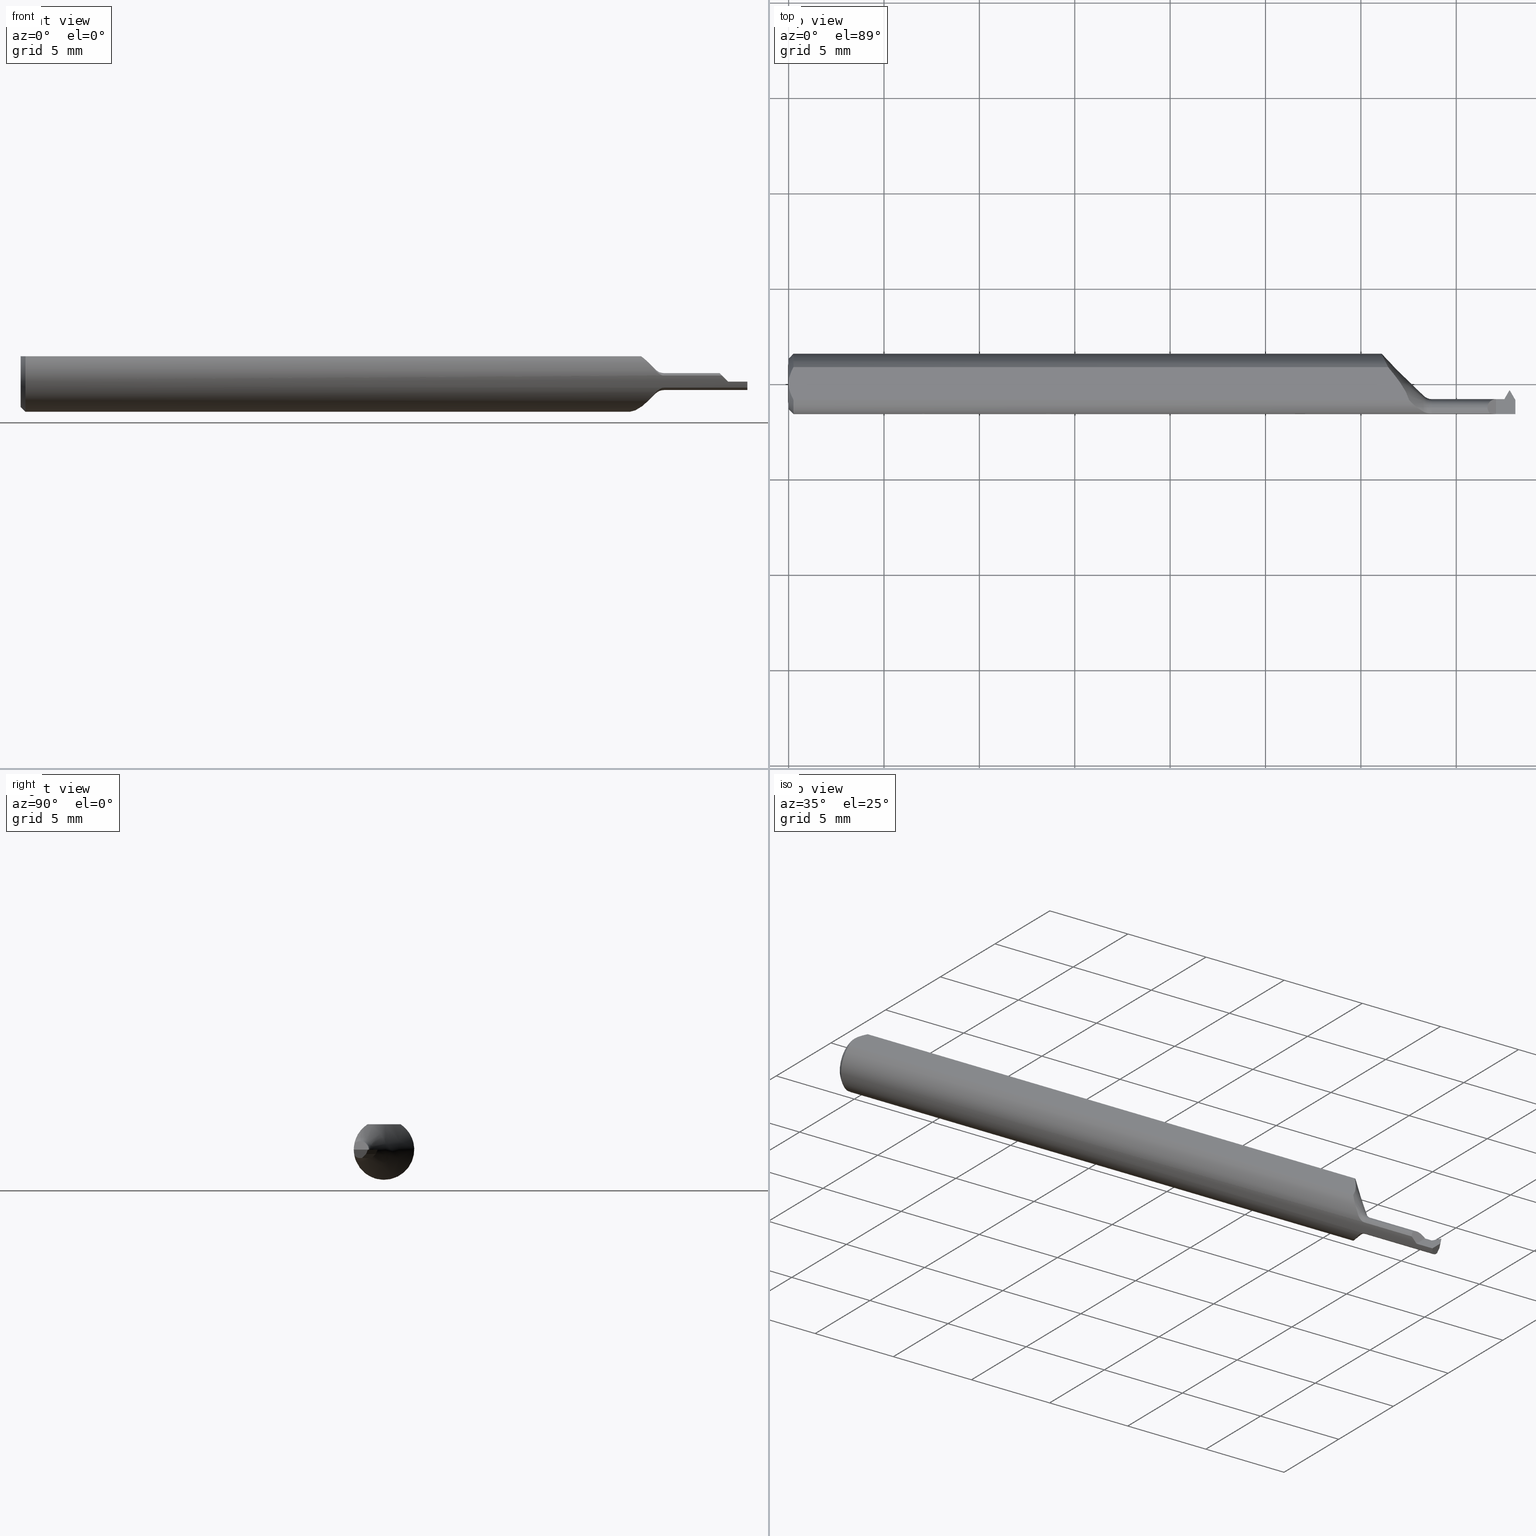
[diagram: canonical four-view strip — front | top / right | iso, engineering-drawing reading convention]
A machine part, canonical four-view strip (front | top / right | iso — engineering-drawing reading convention). The complete STEP part file that produces these views, byte-faithful:
ISO-10303-21;
HEADER;
FILE_DESCRIPTION (( 'STEP AP203' ),
    '1' );
FILE_NAME ('230013-TT050150.STEP',
    '2025-04-28T22:37:43',
    ( '' ),
    ( '' ),
    'SwSTEP 2.0',
    'SolidWorks 2024',
    '' );
FILE_SCHEMA (( 'CONFIG_CONTROL_DESIGN' ));
ENDSEC;

DATA;
#1 = ORIENTED_EDGE ( 'NONE', *, *, #272, .T. ) ;
#2 = CALENDAR_DATE ( 2025, 28, 4 ) ;
#3 = LINE ( 'NONE', #298, #590 ) ;
#4 = ORIENTED_EDGE ( 'NONE', *, *, #316, .T. ) ;
#5 = CARTESIAN_POINT ( 'NONE',  ( 0.007163450771350382031, -0.02864528976618618133, 0.05234999999999997294 ) ) ;
#6 = VECTOR ( 'NONE', #661, 39.37007874015748854 ) ;
#7 = EDGE_CURVE ( 'NONE', #520, #66, #952, .T. ) ;
#8 = AXIS2_PLACEMENT_3D ( 'NONE', #458, #41, #248 ) ;
#9 = ORIENTED_EDGE ( 'NONE', *, *, #920, .T. ) ;
#10 = CARTESIAN_POINT ( 'NONE',  ( 1.478164864313142646, -0.03750850147670057450, -0.01332743078188725235 ) ) ;
#11 = ORIENTED_EDGE ( 'NONE', *, *, #713, .T. ) ;
#12 = LINE ( 'NONE', #614, #761 ) ;
#13 = ORIENTED_EDGE ( 'NONE', *, *, #675, .F. ) ;
#14 = CALENDAR_DATE ( 2025, 28, 4 ) ;
#15 = DIRECTION ( 'NONE',  ( -0.9799247046208295897, 0.000000000000000000, 0.1993679344171976620 ) ) ;
#16 = EDGE_LOOP ( 'NONE', ( #213, #597, #427, #815 ) ) ;
#17 = FACE_OUTER_BOUND ( 'NONE', #882, .T. ) ;
#18 = EDGE_CURVE ( 'NONE', #419, #529, #521, .T. ) ;
#19 = LINE ( 'NONE', #26, #547 ) ;
#20 = ORIENTED_EDGE ( 'NONE', *, *, #198, .F. ) ;
#21 = CARTESIAN_POINT ( 'NONE',  ( 1.487496468395576699, -0.01249139154258763033, 0.002125130505173445424 ) ) ;
#22 = FACE_OUTER_BOUND ( 'NONE', #88, .T. ) ;
#23 = AXIS2_PLACEMENT_3D ( 'NONE', #251, #820, #615 ) ;
#24 = APPROVAL_PERSON_ORGANIZATION ( #357, #739, #665 ) ;
#25 = CC_DESIGN_SECURITY_CLASSIFICATION ( #574, ( #311 ) ) ;
#26 = CARTESIAN_POINT ( 'NONE',  ( 1.459999999999999964, -0.2500000000000000555, 4.898587196589446663E-18 ) ) ;
#27 = EDGE_LOOP ( 'NONE', ( #833, #414, #207, #808 ) ) ;
#28 = CC_DESIGN_PERSON_AND_ORGANIZATION_ASSIGNMENT ( #869, #71, ( #358 ) ) ;
#29 = LINE ( 'NONE', #902, #743 ) ;
#30 = CARTESIAN_POINT ( 'NONE',  ( 1.478164864313142646, -0.03318107069481324861, -0.008999999999999912584 ) ) ;
#31 = DIRECTION ( 'NONE',  ( 0.000000000000000000, -1.000000000000000000, 1.963550396471289392E-17 ) ) ;
#32 = ORIENTED_EDGE ( 'NONE', *, *, #422, .F. ) ;
#33 = CC_DESIGN_PERSON_AND_ORGANIZATION_ASSIGNMENT ( #874, #589, ( #311 ) ) ;
#34 = CARTESIAN_POINT ( 'NONE',  ( 1.451605865465561029, -0.06192549230869275056, 0.008394134534439167544 ) ) ;
#35 = ADVANCED_FACE ( 'NONE', ( #367 ), #604, .T. ) ;
#36 = LINE ( 'NONE', #112, #115 ) ;
#37 = EDGE_LOOP ( 'NONE', ( #691, #718, #245, #635 ) ) ;
#38 = CARTESIAN_POINT ( 'NONE',  ( 1.500000000000000222, -0.03693072567666861455, -0.008999999999999912584 ) ) ;
#39 = EDGE_CURVE ( 'NONE', #154, #592, #924, .T. ) ;
#40 = CIRCLE ( 'NONE', #786, 0.01750000000000001901 ) ;
#41 = DIRECTION ( 'NONE',  ( 1.000000000000000000, 0.000000000000000000, 0.000000000000000000 ) ) ;
#42 = LINE ( 'NONE', #860, #50 ) ;
#43 = CARTESIAN_POINT ( 'NONE',  ( 1.275358580142834652, -0.02771937408487656906, -0.05598997618229406559 ) ) ;
#44 = CARTESIAN_POINT ( 'NONE',  ( 1.328000000000000069, -0.06108080859774817767, -0.01251628223735987665 ) ) ;
#45 = DIRECTION ( 'NONE',  ( -1.000000000000000000, -0.000000000000000000, -0.000000000000000000 ) ) ;
#46 = ADVANCED_FACE ( 'NONE', ( #22 ), #618, .F. ) ;
#47 = DIRECTION ( 'NONE',  ( -1.000000000000000000, -0.000000000000000000, -0.000000000000000000 ) ) ;
#48 = ORIENTED_EDGE ( 'NONE', *, *, #198, .T. ) ;
#49 = CARTESIAN_POINT ( 'NONE',  ( 1.226797206081656988, 0.05592648175052387927, 0.02799002807874791804 ) ) ;
#50 = VECTOR ( 'NONE', #206, 39.37007874015748854 ) ;
#51 = VECTOR ( 'NONE', #799, 39.37007874015748854 ) ;
#52 = ADVANCED_FACE ( 'NONE', ( #918 ), #256, .T. ) ;
#53 = CONICAL_SURFACE ( 'NONE', #850, 0.05235000000000033377, 0.7853981633974376209 ) ;
#54 = CARTESIAN_POINT ( 'NONE',  ( 1.466283328111262385, -0.03182001210948049580, -0.004667694380000145075 ) ) ;
#55 = VERTEX_POINT ( 'NONE', #758 ) ;
#56 = CARTESIAN_POINT ( 'NONE',  ( 1.243886696044967710, 0.02097139061819394690, -0.05887746032603118074 ) ) ;
#57 = ORIENTED_EDGE ( 'NONE', *, *, #150, .F. ) ;
#58 = CARTESIAN_POINT ( 'NONE',  ( 1.328000000000000069, -0.04885000000000003229, 0.000000000000000000 ) ) ;
#59 = EDGE_CURVE ( 'NONE', #828, #315, #546, .T. ) ;
#60 = ORIENTED_EDGE ( 'NONE', *, *, #364, .T. ) ;
#61 = MANIFOLD_SOLID_BREP ( 'Cut-Sweep1', #412 ) ;
#62 = LINE ( 'NONE', #212, #294 ) ;
#63 = VERTEX_POINT ( 'NONE', #185 ) ;
#64 = ADVANCED_FACE ( 'NONE', ( #17 ), #689, .F. ) ;
#65 = DIRECTION ( 'NONE',  ( 0.000000000000000000, 0.000000000000000000, 1.000000000000000000 ) ) ;
#66 = VERTEX_POINT ( 'NONE', #30 ) ;
#67 = AXIS2_PLACEMENT_3D ( 'NONE', #673, #387, #175 ) ;
#68 = CONICAL_SURFACE ( 'NONE', #839, 0.05235000000000033377, 0.7853981633974376209 ) ;
#69 = DIRECTION ( 'NONE',  ( 0.000000000000000000, 1.000000000000000000, -1.963550396471289392E-17 ) ) ;
#70 = VERTEX_POINT ( 'NONE', #247 ) ;
#71 = PERSON_AND_ORGANIZATION_ROLE ( 'creator' ) ;
#72 = LINE ( 'NONE', #500, #559 ) ;
#73 = PLANE ( 'NONE',  #632 ) ;
#74 = B_SPLINE_CURVE_WITH_KNOTS ( 'NONE', 3,
 ( #44, #851, #335, #270, #696, #566 ),
 .UNSPECIFIED., .F., .F.,
 ( 4, 2, 4 ),
 ( 1.961994360720521054E-07, 0.0002730078589434217838, 0.0005458195184507715850 ),
 .UNSPECIFIED. ) ;
#75 = ORIENTED_EDGE ( 'NONE', *, *, #78, .F. ) ;
#76 =( NAMED_UNIT ( * ) SI_UNIT ( $, .STERADIAN. ) SOLID_ANGLE_UNIT ( ) );
#77 = CARTESIAN_POINT ( 'NONE',  ( 1.478164864313142646, -0.03318107069481324861, -0.008999999999999912584 ) ) ;
#78 = EDGE_CURVE ( 'NONE', #63, #297, #830, .T. ) ;
#79 = CARTESIAN_POINT ( 'NONE',  ( 1.478164864313142646, -0.03318107069481324861, -0.008999999999999912584 ) ) ;
#80 = VERTEX_POINT ( 'NONE', #242 ) ;
#81 = CALENDAR_DATE ( 2025, 28, 4 ) ;
#82 = DIRECTION ( 'NONE',  ( -0.1143501000964222691, 0.1980601832175896415, 0.9734969021171833159 ) ) ;
#83 = ORIENTED_EDGE ( 'NONE', *, *, #895, .T. ) ;
#84 = EDGE_CURVE ( 'NONE', #669, #202, #129, .T. ) ;
#85 = CARTESIAN_POINT ( 'NONE',  ( 1.500000000000000222, 0.000000000000000000, 0.000000000000000000 ) ) ;
#86 = AXIS2_PLACEMENT_3D ( 'NONE', #374, #571, #792 ) ;
#87 = AXIS2_PLACEMENT_3D ( 'NONE', #325, #769, #187 ) ;
#88 = EDGE_LOOP ( 'NONE', ( #249, #917, #723, #750 ) ) ;
#89 = PERSON_AND_ORGANIZATION ( #190, #634 ) ;
#90 = LINE ( 'NONE', #795, #278 ) ;
#91 = ORIENTED_EDGE ( 'NONE', *, *, #78, .T. ) ;
#92 = DIRECTION ( 'NONE',  ( 0.1955200734030768106, 0.1955200734030763388, 0.9610118635026889677 ) ) ;
#93 = CARTESIAN_POINT ( 'NONE',  ( 1.481465404463850666, -1.482536500011951253, 0.2566131242664113632 ) ) ;
#94 = EDGE_CURVE ( 'NONE', #613, #55, #494, .T. ) ;
#95 = DIRECTION ( 'NONE',  ( 0.7071067811865550112, 0.000000000000000000, -0.7071067811865400232 ) ) ;
#96 = ORIENTED_EDGE ( 'NONE', *, *, #364, .F. ) ;
#97 = CARTESIAN_POINT ( 'NONE',  ( 1.467232981265880642, -0.03134999999999998899, 0.000000000000000000 ) ) ;
#98 = DIRECTION ( 'NONE',  ( 0.000000000000000000, 0.000000000000000000, 1.000000000000000000 ) ) ;
#99 = CARTESIAN_POINT ( 'NONE',  ( 1.305791166114985691, -0.05560643594609585016, -0.02887963871485707892 ) ) ;
#100 = EDGE_LOOP ( 'NONE', ( #159, #285, #57, #438, #524, #157, #20, #878 ) ) ;
#101 = CARTESIAN_POINT ( 'NONE',  ( 0.000000000000000000, 0.000000000000000000, 0.000000000000000000 ) ) ;
#102 = CARTESIAN_POINT ( 'NONE',  ( 1.478164864313142646, -0.03552256921811273310, -0.01134149852329940401 ) ) ;
#103 = AXIS2_PLACEMENT_3D ( 'NONE', #321, #107, #164 ) ;
#104 = VECTOR ( 'NONE', #744, 39.37007874015748143 ) ;
#105 = CARTESIAN_POINT ( 'NONE',  ( 1.672232981265880714, -0.04885000000000001841, -0.01750000000000001554 ) ) ;
#106 = ORIENTED_EDGE ( 'NONE', *, *, #238, .F. ) ;
#107 = DIRECTION ( 'NONE',  ( -1.000000000000000000, -0.000000000000000000, -0.000000000000000000 ) ) ;
#108 = DIRECTION ( 'NONE',  ( 0.000000000000000000, -0.7071067811865461294, -0.7071067811865487940 ) ) ;
#109 = CARTESIAN_POINT ( 'NONE',  ( 1.447483717762639843, -0.06108080859774819155, 0.01251628223735986277 ) ) ;
#110 = ORIENTED_EDGE ( 'NONE', *, *, #94, .F. ) ;
#111 = EDGE_CURVE ( 'NONE', #152, #320, #265, .T. ) ;
#112 = CARTESIAN_POINT ( 'NONE',  ( 0.000000000000000000, -0.03386738844375224849, 0.05234999999999997294 ) ) ;
#113 = FACE_OUTER_BOUND ( 'NONE', #355, .T. ) ;
#114 = CARTESIAN_POINT ( 'NONE',  ( 1.328000000000000069, -0.04885000000000001841, -0.04250000000000000999 ) ) ;
#115 = VECTOR ( 'NONE', #397, 39.37007874015748143 ) ;
#116 = CARTESIAN_POINT ( 'NONE',  ( 1.465841816201298276, -0.03274116506458225884, -0.006837794748562190869 ) ) ;
#117 = CONICAL_SURFACE ( 'NONE', #866, 0.1111999999999999933, 0.7853981633974428389 ) ;
#118 = LOCAL_TIME ( 15, 37, 43.00000000000000000, #652 ) ;
#119 = CARTESIAN_POINT ( 'NONE',  ( 0.000000000000000000, 0.000000000000000000, 0.000000000000000000 ) ) ;
#120 = ADVANCED_FACE ( 'NONE', ( #915 ), #768, .F. ) ;
#121 = CARTESIAN_POINT ( 'NONE',  ( 1.290272464145333586, -0.04369941679369290788, -0.04464469873827295321 ) ) ;
#122 = DIRECTION ( 'NONE',  ( -0.000000000000000000, 1.000000000000000000, 1.224646799147353207E-16 ) ) ;
#123 = ORIENTED_EDGE ( 'NONE', *, *, #888, .T. ) ;
#124 = ADVANCED_FACE ( 'NONE', ( #379 ), #456, .T. ) ;
#125 = CARTESIAN_POINT ( 'NONE',  ( 1.266747118912807668, -0.01641413537815324813, -0.06028500946651924042 ) ) ;
#126 = LINE ( 'NONE', #267, #165 ) ;
#127 = ORIENTED_EDGE ( 'NONE', *, *, #238, .T. ) ;
#128 = LINE ( 'NONE', #403, #932 ) ;
#129 =( BOUNDED_CURVE ( )  B_SPLINE_CURVE ( 3, ( #461, #684, #328, #102 ),
 .UNSPECIFIED., .F., .T. ) 
 B_SPLINE_CURVE_WITH_KNOTS ( ( 4, 4 ),
 ( 3.061262506316973386, 3.221922800862613290 ),
 .UNSPECIFIED. ) 
 CURVE ( )  GEOMETRIC_REPRESENTATION_ITEM ( )  RATIONAL_B_SPLINE_CURVE ( ( 1.000000000000000000, 0.9978501789070124417, 0.9978501789070124417, 1.000000000000000000 ) ) 
 REPRESENTATION_ITEM ( '' )  );
#130 = AXIS2_PLACEMENT_3D ( 'NONE', #93, #180, #469 ) ;
#131 = VECTOR ( 'NONE', #307, 39.37007874015748143 ) ;
#132 = APPROVAL_PERSON_ORGANIZATION ( #89, #624, #186 ) ;
#133 = EDGE_CURVE ( 'NONE', #686, #228, #36, .T. ) ;
#134 = CARTESIAN_POINT ( 'NONE',  ( 1.477107695154586953, -0.03135000000000000980, 0.000000000000000000 ) ) ;
#135 = ORIENTED_EDGE ( 'NONE', *, *, #675, .T. ) ;
#136 = CARTESIAN_POINT ( 'NONE',  ( 1.235731661812906168, 0.03691102635646652946, -0.05046266542797422233 ) ) ;
#137 = DIRECTION ( 'NONE',  ( 0.000000000000000000, 0.000000000000000000, 1.000000000000000000 ) ) ;
#138 = VERTEX_POINT ( 'NONE', #623 ) ;
#139 = DATE_TIME_ROLE ( 'creation_date' ) ;
#140 = CARTESIAN_POINT ( 'NONE',  ( 1.479483191236221851, -0.04885000000000001841, -0.01750000000000001554 ) ) ;
#141 = DIRECTION ( 'NONE',  ( -2.117945333998910350E-15, -0.9799247046208295897, 0.1993679344171976342 ) ) ;
#142 = ORIENTED_EDGE ( 'NONE', *, *, #920, .F. ) ;
#143 = PERSON_AND_ORGANIZATION ( #190, #634 ) ;
#144 = PLANE ( 'NONE',  #805 ) ;
#145 = AXIS2_PLACEMENT_3D ( 'NONE', #826, #473, #167 ) ;
#146 = VECTOR ( 'NONE', #376, 39.37007874015748143 ) ;
#147 = CARTESIAN_POINT ( 'NONE',  ( 1.442499999999999671, -0.04885000000000001841, 0.01750000000000001554 ) ) ;
#148 = DIRECTION ( 'NONE',  ( -0.1027016844786579203, 0.6087793493572010162, 0.7866638848971453379 ) ) ;
#149 = APPLICATION_PROTOCOL_DEFINITION ( 'international standard', 'config_control_design', 1994, #650 ) ;
#150 = EDGE_CURVE ( 'NONE', #315, #852, #413, .T. ) ;
#151 = CARTESIAN_POINT ( 'NONE',  ( 1.237253451677763127, 0.03386738844375224849, 0.05234999999999997294 ) ) ;
#152 = VERTEX_POINT ( 'NONE', #383 ) ;
#153 = CARTESIAN_POINT ( 'NONE',  ( 1.280692836829395720, -0.03386738844375222768, 0.05234999999999997294 ) ) ;
#154 = VERTEX_POINT ( 'NONE', #407 ) ;
#155 = EDGE_CURVE ( 'NONE', #152, #852, #465, .T. ) ;
#156 = PLANE ( 'NONE',  #923 ) ;
#157 = ORIENTED_EDGE ( 'NONE', *, *, #163, .T. ) ;
#158 = LINE ( 'NONE', #872, #607 ) ;
#159 = ORIENTED_EDGE ( 'NONE', *, *, #600, .F. ) ;
#160 =( CONVERSION_BASED_UNIT ( 'INCH', #214 ) LENGTH_UNIT ( ) NAMED_UNIT ( #802 ) );
#161 = CARTESIAN_POINT ( 'NONE',  ( 1.310322330470336638, -0.03274116506458162046, -0.006837794748560688599 ) ) ;
#162 = ORIENTED_EDGE ( 'NONE', *, *, #333, .F. ) ;
#163 = EDGE_CURVE ( 'NONE', #529, #503, #400, .T. ) ;
#164 = DIRECTION ( 'NONE',  ( 0.000000000000000000, 0.000000000000000000, -1.000000000000000000 ) ) ;
#165 = VECTOR ( 'NONE', #418, 39.37007874015748143 ) ;
#166 = CIRCLE ( 'NONE', #530, 0.02482233047033638104 ) ;
#167 = DIRECTION ( 'NONE',  ( 0.000000000000000000, 0.000000000000000000, 1.000000000000000000 ) ) ;
#168 = CARTESIAN_POINT ( 'NONE',  ( 1.310322330470336416, -0.05790887318343304613, -0.02311027707806784237 ) ) ;
#169 = ORIENTED_EDGE ( 'NONE', *, *, #888, .F. ) ;
#170 = CARTESIAN_POINT ( 'NONE',  ( 1.467232981265880642, -0.03134999999999998899, 0.000000000000000000 ) ) ;
#171 = EDGE_CURVE ( 'NONE', #651, #897, #714, .T. ) ;
#172 = CARTESIAN_POINT ( 'NONE',  ( 1.328000000000000069, -0.04885000000000001841, 0.000000000000000000 ) ) ;
#173 = CARTESIAN_POINT ( 'NONE',  ( 1.523577656103214828, 0.03697619199913761145, -0.01750000000000001901 ) ) ;
#174 = ORIENTED_EDGE ( 'NONE', *, *, #914, .T. ) ;
#175 = DIRECTION ( 'NONE',  ( 0.000000000000000000, 0.000000000000000000, 1.000000000000000000 ) ) ;
#176 = CARTESIAN_POINT ( 'NONE',  ( -3.937007874019685528E-05, -0.01334999999999999555, 1.714505518806282990E-17 ) ) ;
#177 = ORIENTED_EDGE ( 'NONE', *, *, #740, .T. ) ;
#178 = PLANE ( 'NONE',  #821 ) ;
#179 = AXIS2_PLACEMENT_3D ( 'NONE', #58, #552, #411 ) ;
#180 = DIRECTION ( 'NONE',  ( 0.9934405138748566566, 0.02279774325662349208, 0.1120544880603446952 ) ) ;
#181 = CIRCLE ( 'NONE', #389, 0.01750000000000001554 ) ;
#182 = EDGE_CURVE ( 'NONE', #419, #315, #928, .T. ) ;
#183 = DIRECTION ( 'NONE',  ( 0.000000000000000000, -0.3746065934159064637, -0.9271838545667896447 ) ) ;
#184 = ORIENTED_EDGE ( 'NONE', *, *, #401, .T. ) ;
#185 = CARTESIAN_POINT ( 'NONE',  ( 1.500000000000000222, -0.03693072567666861455, -0.008999999999999912584 ) ) ;
#186 = APPROVAL_ROLE ( '' ) ;
#187 = DIRECTION ( 'NONE',  ( -0.000000000000000000, 0.000000000000000000, 1.000000000000000000 ) ) ;
#188 = DIRECTION ( 'NONE',  ( 0.000000000000000000, 0.000000000000000000, 1.000000000000000000 ) ) ;
#189 = CARTESIAN_POINT ( 'NONE',  ( 0.009999999999999887451, 0.03386738844375224849, 0.05234999999999997294 ) ) ;
#190 = PERSON ( 'UNSPECIFIED', 'UNSPECIFIED', 'UNSPECIFIED', ('UNSPECIFIED'), ('UNSPECIFIED'), ('UNSPECIFIED') ) ;
#191 = ADVANCED_FACE ( 'NONE', ( #486 ), #644, .T. ) ;
#192 = LINE ( 'NONE', #479, #931 ) ;
#193 = B_SPLINE_CURVE_WITH_KNOTS ( 'NONE', 3,
 ( #863, #200, #480, #780, #636, #189 ),
 .UNSPECIFIED., .F., .F.,
 ( 4, 2, 4 ),
 ( 0.003093386807937206339, 0.003544501666246027347, 0.003995616524554848788 ),
 .UNSPECIFIED. ) ;
#194 = AXIS2_PLACEMENT_3D ( 'NONE', #674, #306, #98 ) ;
#195 = CARTESIAN_POINT ( 'NONE',  ( -3.937007874019685528E-05, -0.01698623603251635250, -0.008999999999999999320 ) ) ;
#196 = CC_DESIGN_APPROVAL ( #700, ( #358 ) ) ;
#197 = DIRECTION ( 'NONE',  ( -1.000000000000000000, -0.000000000000000000, -0.000000000000000000 ) ) ;
#198 = EDGE_CURVE ( 'NONE', #868, #503, #756, .T. ) ;
#199 = ORIENTED_EDGE ( 'NONE', *, *, #713, .F. ) ;
#200 = CARTESIAN_POINT ( 'NONE',  ( -1.133440131013889109E-15, 0.005954997531774002505, 0.05234999999999997294 ) ) ;
#201 = DIRECTION ( 'NONE',  ( 1.000000000000000000, 0.000000000000000000, 0.000000000000000000 ) ) ;
#202 = VERTEX_POINT ( 'NONE', #332 ) ;
#203 = CARTESIAN_POINT ( 'NONE',  ( 1.284238538065767488, -0.03778417318145798481, -0.04975082321463265844 ) ) ;
#204 = EDGE_CURVE ( 'NONE', #728, #540, #126, .T. ) ;
#205 = ORIENTED_EDGE ( 'NONE', *, *, #252, .T. ) ;
#206 = DIRECTION ( 'NONE',  ( -0.02294223196863365288, 0.9997367923570169568, -1.977508421565508776E-17 ) ) ;
#207 = ORIENTED_EDGE ( 'NONE', *, *, #944, .T. ) ;
#208 = LINE ( 'NONE', #334, #822 ) ;
#209 = CONICAL_SURFACE ( 'NONE', #277, 0.1111999999999999933, 0.7853981633974428389 ) ;
#210 = VECTOR ( 'NONE', #568, 39.37007874015748143 ) ;
#211 = ORIENTED_EDGE ( 'NONE', *, *, #417, .T. ) ;
#212 = CARTESIAN_POINT ( 'NONE',  ( 1.544538834529724847, -0.1225742499920572381, -0.01750000000000001554 ) ) ;
#213 = ORIENTED_EDGE ( 'NONE', *, *, #155, .F. ) ;
#214 = LENGTH_MEASURE_WITH_UNIT ( LENGTH_MEASURE( 0.02539999999999999897 ), #595 );
#215 = DIRECTION ( 'NONE',  ( -1.224646799147358138E-16, 0.000000000000000000, -1.000000000000000000 ) ) ;
#216 = ORIENTED_EDGE ( 'NONE', *, *, #59, .F. ) ;
#217 = CARTESIAN_POINT ( 'NONE',  ( 1.223944660940671891, -0.04885000000000001841, 0.000000000000000000 ) ) ;
#218 = VERTEX_POINT ( 'NONE', #476 ) ;
#219 = DIRECTION ( 'NONE',  ( 0.000000000000000000, 0.000000000000000000, -1.000000000000000000 ) ) ;
#220 = ADVANCED_FACE ( 'NONE', ( #637 ), #558, .T. ) ;
#221 = ORIENTED_EDGE ( 'NONE', *, *, #7, .F. ) ;
#222 = CARTESIAN_POINT ( 'NONE',  ( 1.265940729725909986, -0.003415696435723348211, 0.05234999999999997294 ) ) ;
#223 = EDGE_LOOP ( 'NONE', ( #560, #280 ) ) ;
#224 = AXIS2_PLACEMENT_3D ( 'NONE', #562, #626, #347 ) ;
#225 = LINE ( 'NONE', #729, #706 ) ;
#226 = ORIENTED_EDGE ( 'NONE', *, *, #847, .T. ) ;
#227 = DIRECTION ( 'NONE',  ( 0.1993679344171976342, 0.000000000000000000, 0.9799247046208294787 ) ) ;
#228 = VERTEX_POINT ( 'NONE', #699 ) ;
#229 = DIRECTION ( 'NONE',  ( 0.000000000000000000, -0.7071067811865461294, -0.7071067811865487940 ) ) ;
#230 = ORIENTED_EDGE ( 'NONE', *, *, #687, .T. ) ;
#231 = PERSON_AND_ORGANIZATION ( #190, #634 ) ;
#232 = DIRECTION ( 'NONE',  ( -0.7745966692414800736, 0.4472135954999615914, -0.4472135954999600371 ) ) ;
#233 = ORIENTED_EDGE ( 'NONE', *, *, #654, .F. ) ;
#234 = DIRECTION ( 'NONE',  ( -1.000000000000000000, -0.000000000000000000, -0.000000000000000000 ) ) ;
#235 = EDGE_LOOP ( 'NONE', ( #873, #254, #408, #4 ) ) ;
#236 = CARTESIAN_POINT ( 'NONE',  ( 1.500000000000000222, -0.03326858428704258797, 0.000000000000000000 ) ) ;
#237 = ORIENTED_EDGE ( 'NONE', *, *, #428, .T. ) ;
#238 = EDGE_CURVE ( 'NONE', #301, #320, #74, .T. ) ;
#239 = CYLINDRICAL_SURFACE ( 'NONE', #449, 0.01750000000000001554 ) ;
#240 = VECTOR ( 'NONE', #201, 39.37007874015748143 ) ;
#241 = VECTOR ( 'NONE', #925, 39.37007874015748854 ) ;
#242 = CARTESIAN_POINT ( 'NONE',  ( 1.488485043535099583, -0.02548623603251626638, -0.01750000000000001554 ) ) ;
#243 = COORDINATED_UNIVERSAL_TIME_OFFSET ( 8, 0, .BEHIND. ) ;
#244 = LINE ( 'NONE', #463, #342 ) ;
#245 = ORIENTED_EDGE ( 'NONE', *, *, #697, .F. ) ;
#246 = CARTESIAN_POINT ( 'NONE',  ( 1.328000000000000069, -0.04885000000000003229, 0.000000000000000000 ) ) ;
#247 = CARTESIAN_POINT ( 'NONE',  ( 1.488499999999999934, -0.01334999999999999555, 0.000000000000000000 ) ) ;
#248 = DIRECTION ( 'NONE',  ( 0.000000000000000000, 0.000000000000000000, -1.000000000000000000 ) ) ;
#249 = ORIENTED_EDGE ( 'NONE', *, *, #784, .F. ) ;
#250 = DIRECTION ( 'NONE',  ( 0.4999999999999903411, -0.8660254037844442587, 0.000000000000000000 ) ) ;
#251 = CARTESIAN_POINT ( 'NONE',  ( 1.459999999999999964, -0.2500000000000000555, 4.898587196589446663E-18 ) ) ;
#252 = EDGE_CURVE ( 'NONE', #592, #520, #42, .T. ) ;
#253 = DIRECTION ( 'NONE',  ( -0.000000000000000000, 1.963550396471289392E-17, 1.000000000000000000 ) ) ;
#254 = ORIENTED_EDGE ( 'NONE', *, *, #531, .T. ) ;
#255 = AXIS2_PLACEMENT_3D ( 'NONE', #938, #771, #702 ) ;
#256 = PLANE ( 'NONE',  #528 ) ;
#257 = AXIS2_PLACEMENT_3D ( 'NONE', #176, #760, #183 ) ;
#258 = DIRECTION ( 'NONE',  ( 0.000000000000000000, 0.3768974211598614121, 0.9262550048032377470 ) ) ;
#259 = DIRECTION ( 'NONE',  ( -1.000000000000000000, -0.000000000000000000, -0.000000000000000000 ) ) ;
#260 = DIRECTION ( 'NONE',  ( 1.000000000000000000, -0.000000000000000000, -0.000000000000000000 ) ) ;
#261 = CARTESIAN_POINT ( 'NONE',  ( 1.500000000000000222, -0.04543072567666868455, -0.01750000000000001901 ) ) ;
#262 = CARTESIAN_POINT ( 'NONE',  ( 1.328000000000000069, -0.06108080859774817767, 0.01251628223735987665 ) ) ;
#263 = CARTESIAN_POINT ( 'NONE',  ( 1.467232981265880642, -0.03134999999999998899, 0.000000000000000000 ) ) ;
#264 = ORIENTED_EDGE ( 'NONE', *, *, #660, .F. ) ;
#265 = CIRCLE ( 'NONE', #145, 0.02482233047033638104 ) ;
#266 = CARTESIAN_POINT ( 'NONE',  ( 1.258604930610921491, -0.004327236796243898870, -0.06233527284537540569 ) ) ;
#267 = CARTESIAN_POINT ( 'NONE',  ( -3.937007874019685528E-05, -0.01698623603251635250, -0.008999999999999999320 ) ) ;
#268 = ORIENTED_EDGE ( 'NONE', *, *, #836, .F. ) ;
#269 = LINE ( 'NONE', #273, #210 ) ;
#270 = CARTESIAN_POINT ( 'NONE',  ( 1.315005209892369908, -0.05976161622093303927, -0.01789465587661744767 ) ) ;
#271 = ORIENTED_EDGE ( 'NONE', *, *, #847, .F. ) ;
#272 = EDGE_CURVE ( 'NONE', #202, #669, #588, .T. ) ;
#273 = CARTESIAN_POINT ( 'NONE',  ( 1.477107695154586953, -0.03135000000000000980, 1.399794715961902464E-19 ) ) ;
#274 = DIRECTION ( 'NONE',  ( 0.000000000000000000, 0.000000000000000000, 1.000000000000000000 ) ) ;
#275 = B_SPLINE_CURVE_WITH_KNOTS ( 'NONE', 3,
 ( #336, #698, #121, #203, #406, #43, #630, #125, #930, #266, #484, #790, #561, #56, #941, #846, #136, #936, #716, #416, #854, #553, #639, #409, #488, #783, #704, #420, #49, #341, #346, #710 ),
 .UNSPECIFIED., .F., .F.,
 ( 4, 2, 2, 2, 2, 2, 2, 2, 2, 2, 2, 2, 2, 2, 2, 4 ),
 ( 0.0005794281082984382471, 0.0009548221528387602301, 0.001330216197379082213, 0.001705610241919404196, 0.002081004286459726179, 0.002456398331000047945, 0.002831792375540370145, 0.003207186420080692345, 0.003582580464621014545, 0.003957974509161336744, 0.004333368553701655475, 0.004708762598241975073, 0.005084156642782293803, 0.005459550687322614268, 0.005834944731862932998, 0.006585732820943570459 ),
 .UNSPECIFIED. ) ;
#276 = VERTEX_POINT ( 'NONE', #942 ) ;
#277 = AXIS2_PLACEMENT_3D ( 'NONE', #217, #506, #801 ) ;
#278 = VECTOR ( 'NONE', #720, 39.37007874015748143 ) ;
#279 = PLANE ( 'NONE',  #399 ) ;
#280 = ORIENTED_EDGE ( 'NONE', *, *, #272, .F. ) ;
#281 = DATE_TIME_ROLE ( 'classification_date' ) ;
#282 = CARTESIAN_POINT ( 'NONE',  ( 1.478164864313142646, -0.03318107069481324861, -0.008999999999999912584 ) ) ;
#283 = EDGE_CURVE ( 'NONE', #440, #396, #352, .T. ) ;
#284 = LINE ( 'NONE', #289, #865 ) ;
#285 = ORIENTED_EDGE ( 'NONE', *, *, #844, .T. ) ;
#286 = DATE_AND_TIME ( #947, #313 ) ;
#287 = CARTESIAN_POINT ( 'NONE',  ( 1.478727648097309499, -0.03557051654074881719, -0.01350332911743710139 ) ) ;
#288 = ADVANCED_FACE ( 'NONE', ( #788 ), #478, .F. ) ;
#289 = CARTESIAN_POINT ( 'NONE',  ( 1.478164864313142646, -0.03318107069481324861, -0.008999999999999912584 ) ) ;
#290 =( BOUNDED_CURVE ( )  B_SPLINE_CURVE ( 3, ( #303, #505, #287, #807 ),
 .UNSPECIFIED., .F., .F. ) 
 B_SPLINE_CURVE_WITH_KNOTS ( ( 4, 4 ),
 ( 3.342305517569148510, 4.511676116405404002 ),
 .UNSPECIFIED. ) 
 CURVE ( )  GEOMETRIC_REPRESENTATION_ITEM ( )  RATIONAL_B_SPLINE_CURVE ( ( 1.000000000000000000, 0.8892572147114352621, 0.8892572147114352621, 1.000000000000000000 ) ) 
 REPRESENTATION_ITEM ( '' )  );
#291 = ORIENTED_EDGE ( 'NONE', *, *, #776, .T. ) ;
#292 = FACE_OUTER_BOUND ( 'NONE', #446, .T. ) ;
#293 = UNCERTAINTY_MEASURE_WITH_UNIT (LENGTH_MEASURE( 1.000000000000000082E-05 ), #160, 'distance_accuracy_value', 'NONE');
#294 = VECTOR ( 'NONE', #365, 39.37007874015748143 ) ;
#295 = VERTEX_POINT ( 'NONE', #134 ) ;
#296 = DIRECTION ( 'NONE',  ( -0.5000000000000046629, -0.8660254037844359321, 0.000000000000000000 ) ) ;
#297 = VERTEX_POINT ( 'NONE', #261 ) ;
#298 = CARTESIAN_POINT ( 'NONE',  ( 1.477107695154586953, -0.03135000000000000980, 1.399794715961902464E-19 ) ) ;
#299 = ORIENTED_EDGE ( 'NONE', *, *, #475, .F. ) ;
#300 = CARTESIAN_POINT ( 'NONE',  ( 1.447483717762639843, -0.06108080859774819155, 0.01251628223735986277 ) ) ;
#301 = VERTEX_POINT ( 'NONE', #481 ) ;
#302 = DATE_AND_TIME ( #14, #548 ) ;
#303 = CARTESIAN_POINT ( 'NONE',  ( 1.479483191236221851, -0.04885000000000001841, -0.01750000000000001554 ) ) ;
#304 = VERTEX_POINT ( 'NONE', #845 ) ;
#305 = DIRECTION ( 'NONE',  ( 0.000000000000000000, 0.000000000000000000, -1.000000000000000000 ) ) ;
#306 = DIRECTION ( 'NONE',  ( -1.000000000000000000, -0.000000000000000000, -0.000000000000000000 ) ) ;
#307 = DIRECTION ( 'NONE',  ( -1.000000000000000000, -0.000000000000000000, -0.000000000000000000 ) ) ;
#308 = ORIENTED_EDGE ( 'NONE', *, *, #417, .F. ) ;
#309 = DIRECTION ( 'NONE',  ( 0.000000000000000000, 0.000000000000000000, 1.000000000000000000 ) ) ;
#310 = AXIS2_PLACEMENT_3D ( 'NONE', #445, #498, #137 ) ;
#311 = PRODUCT_DEFINITION_FORMATION_WITH_SPECIFIED_SOURCE ( 'ANY', '', #853, .NOT_KNOWN. ) ;
#312 = DIRECTION ( 'NONE',  ( 0.000000000000000000, 0.000000000000000000, 1.000000000000000000 ) ) ;
#313 = LOCAL_TIME ( 15, 37, 43.00000000000000000, #889 ) ;
#314 = LINE ( 'NONE', #900, #415 ) ;
#315 = VERTEX_POINT ( 'NONE', #554 ) ;
#316 = EDGE_CURVE ( 'NONE', #70, #540, #192, .T. ) ;
#317 = CYLINDRICAL_SURFACE ( 'NONE', #67, 0.06235000000000000264 ) ;
#318 = CARTESIAN_POINT ( 'NONE',  ( 1.459999999999999964, -0.03135000000000000980, 2.322881508592326404E-17 ) ) ;
#319 = CARTESIAN_POINT ( 'NONE',  ( 1.328000000000000069, -0.06108080859774817767, 0.01251628223735987665 ) ) ;
#320 = VERTEX_POINT ( 'NONE', #775 ) ;
#321 = CARTESIAN_POINT ( 'NONE',  ( 0.000000000000000000, 0.000000000000000000, 0.000000000000000000 ) ) ;
#322 = ADVANCED_FACE ( 'NONE', ( #404 ), #279, .T. ) ;
#323 = DIRECTION ( 'NONE',  ( -1.000000000000000000, -0.000000000000000000, -0.000000000000000000 ) ) ;
#324 =( BOUNDED_CURVE ( )  B_SPLINE_CURVE ( 3, ( #455, #541, #34, #300 ),
 .UNSPECIFIED., .F., .T. ) 
 B_SPLINE_CURVE_WITH_KNOTS ( ( 4, 4 ),
 ( 4.712388980384689674, 4.914504563857410524 ),
 .UNSPECIFIED. ) 
 CURVE ( )  GEOMETRIC_REPRESENTATION_ITEM ( )  RATIONAL_B_SPLINE_CURVE ( ( 1.000000000000000000, 0.9965986704452858280, 0.9965986704452858280, 1.000000000000000000 ) ) 
 REPRESENTATION_ITEM ( '' )  );
#325 = CARTESIAN_POINT ( 'NONE',  ( 1.500000000000000222, 0.000000000000000000, 0.000000000000000000 ) ) ;
#326 = ORIENTED_EDGE ( 'NONE', *, *, #654, .T. ) ;
#327 = VECTOR ( 'NONE', #640, 39.37007874015748143 ) ;
#328 = CARTESIAN_POINT ( 'NONE',  ( 1.478226333658541281, -0.03613059952342648207, -0.01205599685795174028 ) ) ;
#329 = VECTOR ( 'NONE', #838, 39.37007874015748854 ) ;
#330 = ADVANCED_FACE ( 'NONE', ( #433 ), #73, .F. ) ;
#331 = CARTESIAN_POINT ( 'NONE',  ( 1.310322330470336416, -0.05790887318343304613, 0.02311027707806784237 ) ) ;
#332 = CARTESIAN_POINT ( 'NONE',  ( 1.478164864313142646, -0.03552256921811273310, -0.01134149852329940401 ) ) ;
#333 = EDGE_CURVE ( 'NONE', #686, #276, #509, .T. ) ;
#334 = CARTESIAN_POINT ( 'NONE',  ( 1.477107695154586953, -0.03135000000000000980, 0.000000000000000000 ) ) ;
#335 = CARTESIAN_POINT ( 'NONE',  ( 1.320917692584105074, -0.06080192119646979365, -0.01395692878461889282 ) ) ;
#336 = CARTESIAN_POINT ( 'NONE',  ( 1.296399338642361565, -0.04885000000000000453, -0.03874532229831106206 ) ) ;
#337 = CARTESIAN_POINT ( 'NONE',  ( 1.310322330470336638, -0.04885000000000001841, 0.01750000000000001554 ) ) ;
#338 = AXIS2_PLACEMENT_3D ( 'NONE', #246, #234, #450 ) ;
#339 = ORIENTED_EDGE ( 'NONE', *, *, #914, .F. ) ;
#340 = TOROIDAL_SURFACE ( 'NONE', #338, 0.04250000000000000999, 0.02499999999999999098 ) ;
#341 = CARTESIAN_POINT ( 'NONE',  ( 1.230229168581589816, 0.04839488953273463068, 0.04049962096708457221 ) ) ;
#342 = VECTOR ( 'NONE', #754, 39.37007874015748143 ) ;
#343 = EDGE_CURVE ( 'NONE', #228, #613, #879, .T. ) ;
#344 = DIRECTION ( 'NONE',  ( -1.000000000000000000, -0.000000000000000000, -0.000000000000000000 ) ) ;
#345 = ORIENTED_EDGE ( 'NONE', *, *, #182, .T. ) ;
#346 = CARTESIAN_POINT ( 'NONE',  ( 1.233383615634219943, 0.04162220789005000032, 0.04733308533908438254 ) ) ;
#347 = DIRECTION ( 'NONE',  ( 0.000000000000000000, -3.414809992080325572E-15, -1.000000000000000000 ) ) ;
#348 = ORIENTED_EDGE ( 'NONE', *, *, #862, .F. ) ;
#349 = CARTESIAN_POINT ( 'NONE',  ( 0.009999999999999887451, 0.000000000000000000, 0.000000000000000000 ) ) ;
#350 = ORIENTED_EDGE ( 'NONE', *, *, #497, .F. ) ;
#351 = EDGE_CURVE ( 'NONE', #629, #651, #837, .T. ) ;
#352 = CIRCLE ( 'NONE', #904, 0.05235000000000033377 ) ;
#353 = LINE ( 'NONE', #474, #329 ) ;
#354 = CARTESIAN_POINT ( 'NONE',  ( 0.000000000000000000, 0.000000000000000000, -0.05235000000000033377 ) ) ;
#355 = EDGE_LOOP ( 'NONE', ( #299, #291, #162, #499 ) ) ;
#356 = PRODUCT_DEFINITION_SHAPE ( 'NONE', 'NONE',  #358 ) ;
#357 = PERSON_AND_ORGANIZATION ( #190, #634 ) ;
#358 = PRODUCT_DEFINITION ( 'UNKNOWN', '', #311, #749 ) ;
#359 = FACE_OUTER_BOUND ( 'NONE', #818, .T. ) ;
#360 = CARTESIAN_POINT ( 'NONE',  ( 1.296399338642361565, -0.04885000000000000453, 0.03874532229831106206 ) ) ;
#361 = CARTESIAN_POINT ( 'NONE',  ( 1.449748737341528981, -0.03135000000000000980, 0.01025126265847085480 ) ) ;
#362 = PERSON_AND_ORGANIZATION ( #190, #634 ) ;
#363 = DIRECTION ( 'NONE',  ( -1.000000000000000000, -0.000000000000000000, -0.000000000000000000 ) ) ;
#364 = EDGE_CURVE ( 'NONE', #154, #297, #225, .T. ) ;
#365 = DIRECTION ( 'NONE',  ( -0.4999999999999902300, 0.8660254037844441477, -1.360387619964135709E-17 ) ) ;
#366 = B_SPLINE_CURVE_WITH_KNOTS ( 'NONE', 3,
 ( #583, #737, #881, #648, #222, #658, #511, #151 ),
 .UNSPECIFIED., .F., .F.,
 ( 4, 2, 2, 4 ),
 ( 0.001782749369705201271, 0.002291746602842737422, 0.002800743835980273357, 0.003818738302255333950 ),
 .UNSPECIFIED. ) ;
#367 = FACE_OUTER_BOUND ( 'NONE', #762, .T. ) ;
#368 = CALENDAR_DATE ( 2025, 28, 4 ) ;
#369 = B_SPLINE_CURVE_WITH_KNOTS ( 'NONE', 3,
 ( #331, #477, #772, #627, #926, #262 ),
 .UNSPECIFIED., .F., .F.,
 ( 4, 2, 4 ),
 ( 3.346069241335862166E-07, 0.0002723149243493555301, 0.0005442952417745775505 ),
 .UNSPECIFIED. ) ;
#370 = DIRECTION ( 'NONE',  ( 0.000000000000000000, -1.000000000000000000, 0.000000000000000000 ) ) ;
#371 = TOROIDAL_SURFACE ( 'NONE', #921, 0.04250000000000000999, 0.02499999999999999098 ) ;
#372 = ORIENTED_EDGE ( 'NONE', *, *, #475, .T. ) ;
#373 = AXIS2_PLACEMENT_3D ( 'NONE', #950, #15, #227 ) ;
#374 = CARTESIAN_POINT ( 'NONE',  ( 1.487500000000000266, -0.01334999999999999555, 0.000000000000000000 ) ) ;
#375 = EDGE_LOOP ( 'NONE', ( #526, #512, #11 ) ) ;
#376 = DIRECTION ( 'NONE',  ( -1.000000000000000000, -0.000000000000000000, -0.000000000000000000 ) ) ;
#377 = ORIENTED_EDGE ( 'NONE', *, *, #537, .T. ) ;
#378 = FACE_OUTER_BOUND ( 'NONE', #487, .T. ) ;
#379 = FACE_OUTER_BOUND ( 'NONE', #893, .T. ) ;
#380 = LINE ( 'NONE', #398, #131 ) ;
#381 = ORIENTED_EDGE ( 'NONE', *, *, #619, .F. ) ;
#382 = FACE_OUTER_BOUND ( 'NONE', #223, .T. ) ;
#383 = CARTESIAN_POINT ( 'NONE',  ( 1.310322330470336416, -0.04885000000000003229, -0.02482233047033638104 ) ) ;
#384 = EDGE_CURVE ( 'NONE', #297, #80, #62, .T. ) ;
#385 = CARTESIAN_POINT ( 'NONE',  ( 1.442499999999999671, -0.05348062385436947591, 0.01750000000000001901 ) ) ;
#386 = ORIENTED_EDGE ( 'NONE', *, *, #944, .F. ) ;
#387 = DIRECTION ( 'NONE',  ( -1.000000000000000000, -0.000000000000000000, -0.000000000000000000 ) ) ;
#388 = VECTOR ( 'NONE', #323, 39.37007874015748143 ) ;
#389 = AXIS2_PLACEMENT_3D ( 'NONE', #690, #827, #544 ) ;
#390 = CARTESIAN_POINT ( 'NONE',  ( 1.305816642641693948, -0.05561938142747126224, 0.02884720040887161704 ) ) ;
#391 = DIRECTION ( 'NONE',  ( 0.000000000000000000, 0.000000000000000000, -1.000000000000000000 ) ) ;
#392 = VERTEX_POINT ( 'NONE', #593 ) ;
#393 = ADVANCED_FACE ( 'NONE', ( #513 ), #655, .F. ) ;
#394 = DIRECTION ( 'NONE',  ( 0.000000000000000000, 0.000000000000000000, 1.000000000000000000 ) ) ;
#395 = DIRECTION ( 'NONE',  ( 1.000000000000000000, 0.000000000000000000, 0.000000000000000000 ) ) ;
#396 = VERTEX_POINT ( 'NONE', #354 ) ;
#397 = DIRECTION ( 'NONE',  ( 1.000000000000000000, 0.000000000000000000, 0.000000000000000000 ) ) ;
#398 = CARTESIAN_POINT ( 'NONE',  ( 1.310322330470336638, -0.04885000000000001841, -0.01750000000000001554 ) ) ;
#399 = AXIS2_PLACEMENT_3D ( 'NONE', #79, #796, #296 ) ;
#400 = LINE ( 'NONE', #633, #240 ) ;
#401 = EDGE_CURVE ( 'NONE', #152, #859, #649, .T. ) ;
#402 = LOCAL_TIME ( 15, 37, 43.00000000000000000, #435 ) ;
#403 = CARTESIAN_POINT ( 'NONE',  ( 1.400116490632940414, -0.06108080859774817767, -0.01251628223735987838 ) ) ;
#404 = FACE_OUTER_BOUND ( 'NONE', #448, .T. ) ;
#405 = CC_DESIGN_DATE_AND_TIME_ASSIGNMENT ( #811, #139, ( #358 ) ) ;
#406 = CARTESIAN_POINT ( 'NONE',  ( 1.281262241805919189, -0.03458795510178934440, -0.05202801643756744393 ) ) ;
#407 = CARTESIAN_POINT ( 'NONE',  ( 1.500000000000000222, -0.04885000000000001841, -0.01750000000000001554 ) ) ;
#408 = ORIENTED_EDGE ( 'NONE', *, *, #836, .T. ) ;
#409 = CARTESIAN_POINT ( 'NONE',  ( 1.223972065761688155, 0.06228624462976680570, -0.005677941240280068129 ) ) ;
#410 = EDGE_CURVE ( 'NONE', #202, #669, #284, .T. ) ;
#411 = DIRECTION ( 'NONE',  ( 0.000000000000000000, 0.000000000000000000, 1.000000000000000000 ) ) ;
#412 = CLOSED_SHELL ( 'NONE', ( #642, #457, #501, #288, #726, #516, #35, #831, #124, #797, #949, #462, #393, #120, #330, #472, #46, #670, #220, #543, #64, #436, #191, #857, #563, #569, #52, #322, #556 ) ) ;
#413 = CIRCLE ( 'NONE', #194, 0.01750000000000001554 ) ;
#414 = ORIENTED_EDGE ( 'NONE', *, *, #444, .F. ) ;
#415 = VECTOR ( 'NONE', #685, 39.37007874015748143 ) ;
#416 = CARTESIAN_POINT ( 'NONE',  ( 1.228161114752954086, 0.05291627376059242216, -0.03331670432072829369 ) ) ;
#417 = EDGE_CURVE ( 'NONE', #629, #154, #40, .T. ) ;
#418 = DIRECTION ( 'NONE',  ( 1.000000000000000000, -0.000000000000000000, -0.000000000000000000 ) ) ;
#419 = VERTEX_POINT ( 'NONE', #147 ) ;
#420 = CARTESIAN_POINT ( 'NONE',  ( 1.225898378997372085, 0.05793721673796965038, 0.02356019257413410894 ) ) ;
#421 = DIRECTION ( 'NONE',  ( 1.000000000000000000, 0.000000000000000000, 0.000000000000000000 ) ) ;
#422 = EDGE_CURVE ( 'NONE', #686, #440, #948, .T. ) ;
#423 = ORIENTED_EDGE ( 'NONE', *, *, #283, .T. ) ;
#424 = APPROVAL_DATE_TIME ( #577, #739 ) ;
#425 = DIRECTION ( 'NONE',  ( 0.000000000000000000, 0.000000000000000000, -1.000000000000000000 ) ) ;
#426 = DIRECTION ( 'NONE',  ( 0.000000000000000000, 0.000000000000000000, 1.000000000000000000 ) ) ;
#427 = ORIENTED_EDGE ( 'NONE', *, *, #594, .T. ) ;
#428 = EDGE_CURVE ( 'NONE', #828, #392, #158, .T. ) ;
#429 = DIRECTION ( 'NONE',  ( 0.000000000000000000, -0.7071067811865434649, -0.7071067811865516806 ) ) ;
#430 = AXIS2_PLACEMENT_3D ( 'NONE', #611, #903, #538 ) ;
#431 = APPROVAL_PERSON_ORGANIZATION ( #362, #700, #794 ) ;
#432 = CARTESIAN_POINT ( 'NONE',  ( 0.000000000000000000, 0.03386738844375224849, 0.05234999999999997294 ) ) ;
#433 = FACE_OUTER_BOUND ( 'NONE', #667, .T. ) ;
#434 = CARTESIAN_POINT ( 'NONE',  ( 1.442499999999999671, -0.04885000000000001841, 0.01750000000000001554 ) ) ;
#435 = COORDINATED_UNIVERSAL_TIME_OFFSET ( 8, 0, .BEHIND. ) ;
#436 = ADVANCED_FACE ( 'NONE', ( #814 ), #371, .F. ) ;
#437 = CARTESIAN_POINT ( 'NONE',  ( 1.223944660940671891, -0.04885000000000001841, 0.000000000000000000 ) ) ;
#438 = ORIENTED_EDGE ( 'NONE', *, *, #182, .F. ) ;
#439 = CARTESIAN_POINT ( 'NONE',  ( 1.285897383745186584, -0.03966876148853260009, 0.04859685091853504363 ) ) ;
#440 = VERTEX_POINT ( 'NONE', #877 ) ;
#441 = APPROVAL_STATUS ( 'not_yet_approved' ) ;
#442 = CARTESIAN_POINT ( 'NONE',  ( 1.500000000000000222, -0.06235000000000000264, 0.000000000000000000 ) ) ;
#443 = ORIENTED_EDGE ( 'NONE', *, *, #133, .T. ) ;
#444 = EDGE_CURVE ( 'NONE', #55, #891, #722, .T. ) ;
#445 = CARTESIAN_POINT ( 'NONE',  ( 1.310322330470336416, -0.04885000000000001841, 0.000000000000000000 ) ) ;
#446 = EDGE_LOOP ( 'NONE', ( #268, #348, #576, #782, #587, #471, #899, #545 ) ) ;
#447 = LINE ( 'NONE', #77, #51 ) ;
#448 = EDGE_LOOP ( 'NONE', ( #901, #939 ) ) ;
#449 = AXIS2_PLACEMENT_3D ( 'NONE', #598, #898, #309 ) ;
#450 = DIRECTION ( 'NONE',  ( 0.000000000000000000, 0.000000000000000000, 1.000000000000000000 ) ) ;
#451 = CARTESIAN_POINT ( 'NONE',  ( 1.488000000000000433, -0.01614611598584195923, -0.008999999999999912584 ) ) ;
#452 = APPROVAL_STATUS ( 'not_yet_approved' ) ;
#453 = CARTESIAN_POINT ( 'NONE',  ( 1.487514956464901283, -0.02548623603251628025, -0.01750000000000001901 ) ) ;
#454 = ORIENTED_EDGE ( 'NONE', *, *, #697, .T. ) ;
#455 = CARTESIAN_POINT ( 'NONE',  ( 1.459999999999999964, -0.06235000000000005121, 4.898587196589446663E-18 ) ) ;
#456 = CYLINDRICAL_SURFACE ( 'NONE', #664, 0.01750000000000001554 ) ;
#457 = ADVANCED_FACE ( 'NONE', ( #575 ), #209, .T. ) ;
#458 = CARTESIAN_POINT ( 'NONE',  ( 0.009999999999999887451, 0.000000000000000000, 0.000000000000000000 ) ) ;
#459 = ORIENTED_EDGE ( 'NONE', *, *, #619, .T. ) ;
#460 = CARTESIAN_POINT ( 'NONE',  ( 1.479274568641545384, -0.03975900641664006224, -0.01750000000000008493 ) ) ;
#461 = CARTESIAN_POINT ( 'NONE',  ( 1.478164864313142646, -0.03750850147670057450, -0.01332743078188725235 ) ) ;
#462 = ADVANCED_FACE ( 'NONE', ( #610 ), #178, .F. ) ;
#463 = CARTESIAN_POINT ( 'NONE',  ( 1.310322330470336638, -0.01335000000000000422, 2.322881508592326404E-17 ) ) ;
#464 = ORIENTED_EDGE ( 'NONE', *, *, #600, .T. ) ;
#465 = CIRCLE ( 'NONE', #681, 0.02499999999999999098 ) ;
#466 = DIRECTION ( 'NONE',  ( 0.4999999999999949485, -0.8660254037844417052, 0.000000000000000000 ) ) ;
#467 = AXIS2_PLACEMENT_3D ( 'NONE', #105, #253, #31 ) ;
#468 = CIRCLE ( 'NONE', #763, 0.02499999999999999098 ) ;
#469 = DIRECTION ( 'NONE',  ( 0.1120836188533004540, 0.000000000000000000, -0.9936987784961538450 ) ) ;
#470 = CARTESIAN_POINT ( 'NONE',  ( 1.296399338642361565, -0.04885000000000000453, -0.03874532229831106206 ) ) ;
#471 = ORIENTED_EDGE ( 'NONE', *, *, #171, .F. ) ;
#472 = ADVANCED_FACE ( 'NONE', ( #378 ), #317, .T. ) ;
#473 = DIRECTION ( 'NONE',  ( -1.000000000000000000, -0.000000000000000000, -0.000000000000000000 ) ) ;
#474 = CARTESIAN_POINT ( 'NONE',  ( 1.487514956464901283, -0.01698623603251293163, -0.008999999999996578445 ) ) ;
#475 = EDGE_CURVE ( 'NONE', #396, #440, #849, .T. ) ;
#476 = CARTESIAN_POINT ( 'NONE',  ( 1.477910884679110692, -0.03274116506457802611, -0.006837794748563086854 ) ) ;
#477 = CARTESIAN_POINT ( 'NONE',  ( 1.312456224277631200, -0.05899317650530144785, 0.02039327012283572924 ) ) ;
#478 = TOROIDAL_SURFACE ( 'NONE', #179, 0.04250000000000000999, 0.02499999999999999098 ) ;
#479 = CARTESIAN_POINT ( 'NONE',  ( 1.488496466021451692, -0.01420918565790538386, -0.002126559126525475515 ) ) ;
#480 = CARTESIAN_POINT ( 'NONE',  ( 0.001063697276021325104, 0.01189177144351695990, 0.05234999999999997988 ) ) ;
#481 = CARTESIAN_POINT ( 'NONE',  ( 1.328000000000000069, -0.06108080859774817767, -0.01251628223735987665 ) ) ;
#482 = EDGE_LOOP ( 'NONE', ( #454, #489, #645, #326 ) ) ;
#483 = EDGE_CURVE ( 'NONE', #897, #392, #324, .T. ) ;
#484 = CARTESIAN_POINT ( 'NONE',  ( 1.255943135934091348, -7.546988640704478863E-05, -0.06249433022256211528 ) ) ;
#485 = APPLICATION_CONTEXT ( 'configuration controlled 3d designs of mechanical parts and assemblies' ) ;
#486 = FACE_OUTER_BOUND ( 'NONE', #375, .T. ) ;
#487 = EDGE_LOOP ( 'NONE', ( #169, #682, #745, #742, #856, #386, #110, #907, #570, #864, #715, #13, #339, #199, #106 ) ) ;
#488 = CARTESIAN_POINT ( 'NONE',  ( 1.223860078364205517, 0.06254238248359815511, -0.0006170433720268707432 ) ) ;
#489 = ORIENTED_EDGE ( 'NONE', *, *, #705, .T. ) ;
#490 = DIRECTION ( 'NONE',  ( 0.000000000000000000, 0.000000000000000000, -1.000000000000000000 ) ) ;
#491 = AXIS2_PLACEMENT_3D ( 'NONE', #349, #421, #219 ) ;
#492 = ORIENTED_EDGE ( 'NONE', *, *, #283, .F. ) ;
#493 = VECTOR ( 'NONE', #551, 39.37007874015748143 ) ;
#494 = B_SPLINE_CURVE_WITH_KNOTS ( 'NONE', 3,
 ( #679, #542, #390, #835 ),
 .UNSPECIFIED., .F., .F.,
 ( 4, 4 ),
 ( 0.0006507702106821684936, 0.001225573850485195924 ),
 .UNSPECIFIED. ) ;
#495 = DIRECTION ( 'NONE',  ( 1.000000000000000000, -2.161334767877317977E-15, -0.000000000000000000 ) ) ;
#496 = EDGE_LOOP ( 'NONE', ( #733, #184, #174, #638, #886, #381 ) ) ;
#497 = EDGE_CURVE ( 'NONE', #540, #63, #12, .T. ) ;
#498 = DIRECTION ( 'NONE',  ( -1.000000000000000000, -0.000000000000000000, -0.000000000000000000 ) ) ;
#499 = ORIENTED_EDGE ( 'NONE', *, *, #422, .T. ) ;
#500 = CARTESIAN_POINT ( 'NONE',  ( 1.223944660940671891, -0.04885000000000001841, 0.1111999999999999933 ) ) ;
#501 = ADVANCED_FACE ( 'NONE', ( #757 ), #340, .F. ) ;
#502 = DIRECTION ( 'NONE',  ( -1.000000000000000000, -0.000000000000000000, -0.000000000000000000 ) ) ;
#503 = VERTEX_POINT ( 'NONE', #170 ) ;
#504 = DIRECTION ( 'NONE',  ( 0.000000000000000000, -0.7071067811865516806, 0.7071067811865434649 ) ) ;
#505 = CARTESIAN_POINT ( 'NONE',  ( 1.479317018840704323, -0.04160882756742044497, -0.01750000000000002248 ) ) ;
#506 = DIRECTION ( 'NONE',  ( -1.000000000000000000, -0.000000000000000000, -0.000000000000000000 ) ) ;
#507 = EDGE_LOOP ( 'NONE', ( #75, #518, #703, #581, #211, #60 ) ) ;
#508 = COORDINATED_UNIVERSAL_TIME_OFFSET ( 8, 0, .BEHIND. ) ;
#509 = CIRCLE ( 'NONE', #491, 0.06235000000000000264 ) ;
#510 =( GEOMETRIC_REPRESENTATION_CONTEXT ( 3 ) GLOBAL_UNCERTAINTY_ASSIGNED_CONTEXT ( ( #293 ) ) GLOBAL_UNIT_ASSIGNED_CONTEXT ( ( #160, #515, #76 ) ) REPRESENTATION_CONTEXT ( 'NONE', 'WORKASPACE' ) );
#511 = CARTESIAN_POINT ( 'NONE',  ( 1.245943991857031419, 0.02358264054126600964, 0.05234999999999997294 ) ) ;
#512 = ORIENTED_EDGE ( 'NONE', *, *, #111, .T. ) ;
#513 = FACE_OUTER_BOUND ( 'NONE', #912, .T. ) ;
#514 = ORIENTED_EDGE ( 'NONE', *, *, #550, .T. ) ;
#515 =( NAMED_UNIT ( * ) PLANE_ANGLE_UNIT ( ) SI_UNIT ( $, .RADIAN. ) );
#516 = ADVANCED_FACE ( 'NONE', ( #834, #688 ), #239, .T. ) ;
#517 = FACE_OUTER_BOUND ( 'NONE', #482, .T. ) ;
#518 = ORIENTED_EDGE ( 'NONE', *, *, #804, .T. ) ;
#519 = DIRECTION ( 'NONE',  ( 1.000000000000000000, 0.000000000000000000, 0.000000000000000000 ) ) ;
#520 = VERTEX_POINT ( 'NONE', #460 ) ;
#521 =( BOUNDED_CURVE ( )  B_SPLINE_CURVE ( 3, ( #434, #730, #361, #318 ),
 .UNSPECIFIED., .F., .F. ) 
 B_SPLINE_CURVE_WITH_KNOTS ( ( 4, 4 ),
 ( 0.000000000000000000, 1.570796326794895892 ),
 .UNSPECIFIED. ) 
 CURVE ( )  GEOMETRIC_REPRESENTATION_ITEM ( )  RATIONAL_B_SPLINE_CURVE ( ( 1.000000000000000000, 0.8047378541243652705, 0.8047378541243652705, 1.000000000000000000 ) ) 
 REPRESENTATION_ITEM ( '' )  );
#522 = DIRECTION ( 'NONE',  ( 1.000000000000000000, 0.000000000000000000, 0.000000000000000000 ) ) ;
#523 = CARTESIAN_POINT ( 'NONE',  ( 0.009999999999999887451, 0.03386738844375224849, 0.05234999999999997294 ) ) ;
#524 = ORIENTED_EDGE ( 'NONE', *, *, #18, .T. ) ;
#525 = CARTESIAN_POINT ( 'NONE',  ( 1.459999999999999964, -0.03135000000000000980, 2.322881508592326404E-17 ) ) ;
#526 = ORIENTED_EDGE ( 'NONE', *, *, #401, .F. ) ;
#527 = DIRECTION ( 'NONE',  ( -0.000000000000000000, 1.000000000000000000, -0.000000000000000000 ) ) ;
#528 = AXIS2_PLACEMENT_3D ( 'NONE', #451, #549, #909 ) ;
#529 = VERTEX_POINT ( 'NONE', #525 ) ;
#530 = AXIS2_PLACEMENT_3D ( 'NONE', #896, #875, #65 ) ;
#531 = EDGE_CURVE ( 'NONE', #728, #304, #819, .T. ) ;
#532 = DIRECTION ( 'NONE',  ( -0.001540819590688502147, 0.3746061487342010610, 0.9271827539409468466 ) ) ;
#533 = CARTESIAN_POINT ( 'NONE',  ( 1.310322330470336638, -0.04885000000000001841, 0.000000000000000000 ) ) ;
#534 = LINE ( 'NONE', #173, #493 ) ;
#535 = ORIENTED_EDGE ( 'NONE', *, *, #804, .F. ) ;
#536 = DIRECTION ( 'NONE',  ( 1.000000000000000000, 0.000000000000000000, 0.000000000000000000 ) ) ;
#537 = EDGE_CURVE ( 'NONE', #868, #503, #746, .T. ) ;
#538 = DIRECTION ( 'NONE',  ( 0.000000000000000000, 0.000000000000000000, -1.000000000000000000 ) ) ;
#539 = FACE_OUTER_BOUND ( 'NONE', #235, .T. ) ;
#540 = VERTEX_POINT ( 'NONE', #603 ) ;
#541 = CARTESIAN_POINT ( 'NONE',  ( 1.455792198643444779, -0.06235000000000000958, 0.004207801356555392579 ) ) ;
#542 = CARTESIAN_POINT ( 'NONE',  ( 1.301072565682184878, -0.05255656474577561493, 0.03407209525848768628 ) ) ;
#543 = ADVANCED_FACE ( 'NONE', ( #825 ), #68, .T. ) ;
#544 = DIRECTION ( 'NONE',  ( 0.000000000000000000, 0.000000000000000000, 1.000000000000000000 ) ) ;
#545 = ORIENTED_EDGE ( 'NONE', *, *, #550, .F. ) ;
#546 = CIRCLE ( 'NONE', #557, 0.01750000000000001554 ) ;
#547 = VECTOR ( 'NONE', #527, 39.37007874015748143 ) ;
#548 = LOCAL_TIME ( 15, 37, 43.00000000000000000, #243 ) ;
#549 = DIRECTION ( 'NONE',  ( 0.7745966692414920640, 0.4472135954999513774, -0.4472135954999496010 ) ) ;
#550 = EDGE_CURVE ( 'NONE', #70, #785, #29, .T. ) ;
#551 = DIRECTION ( 'NONE',  ( -0.5000000000000046629, -0.8660254037844359321, 1.360387619964107051E-17 ) ) ;
#552 = DIRECTION ( 'NONE',  ( -1.000000000000000000, -0.000000000000000000, -0.000000000000000000 ) ) ;
#553 = CARTESIAN_POINT ( 'NONE',  ( 1.225324714678055038, 0.05922021216607439853, -0.02011771535692728763 ) ) ;
#554 = CARTESIAN_POINT ( 'NONE',  ( 1.328000000000000069, -0.04885000000000001841, 0.01750000000000001554 ) ) ;
#555 = FACE_OUTER_BOUND ( 'NONE', #37, .T. ) ;
#556 = ADVANCED_FACE ( 'NONE', ( #382 ), #678, .T. ) ;
#557 = AXIS2_PLACEMENT_3D ( 'NONE', #172, #842, #747 ) ;
#558 = PLANE ( 'NONE',  #255 ) ;
#559 = VECTOR ( 'NONE', #954, 39.37007874015748854 ) ;
#560 = ORIENTED_EDGE ( 'NONE', *, *, #410, .T. ) ;
#561 = CARTESIAN_POINT ( 'NONE',  ( 1.248476377301064311, 0.01261289760007555487, -0.06121494403357938957 ) ) ;
#562 = CARTESIAN_POINT ( 'NONE',  ( 1.478164864313142646, -0.04885000000000001841, 0.000000000000000000 ) ) ;
#563 = ADVANCED_FACE ( 'NONE', ( #359 ), #653, .F. ) ;
#564 = ORIENTED_EDGE ( 'NONE', *, *, #759, .F. ) ;
#565 = CARTESIAN_POINT ( 'NONE',  ( -3.937007874019685528E-05, -0.02548623603251626638, -0.01750000000000001554 ) ) ;
#566 = CARTESIAN_POINT ( 'NONE',  ( 1.310322330470336416, -0.05790887318343304613, -0.02311027707806784237 ) ) ;
#567 = ORIENTED_EDGE ( 'NONE', *, *, #111, .F. ) ;
#568 = DIRECTION ( 'NONE',  ( -0.1143501000964222691, 0.1980601832175896415, 0.9734969021171833159 ) ) ;
#569 = ADVANCED_FACE ( 'NONE', ( #517 ), #156, .T. ) ;
#570 = ORIENTED_EDGE ( 'NONE', *, *, #133, .F. ) ;
#571 = DIRECTION ( 'NONE',  ( 0.8486396879976028096, -0.4899623523104110756, 0.1993679344171976342 ) ) ;
#572 = EDGE_LOOP ( 'NONE', ( #929, #1 ) ) ;
#573 = MECHANICAL_CONTEXT ( 'NONE', #485, 'mechanical' ) ;
#574 = SECURITY_CLASSIFICATION ( '', '', #647 ) ;
#575 = FACE_OUTER_BOUND ( 'NONE', #584, .T. ) ;
#576 = ORIENTED_EDGE ( 'NONE', *, *, #933, .F. ) ;
#577 = DATE_AND_TIME ( #81, #118 ) ;
#578 = DIRECTION ( 'NONE',  ( -0.5000000000000046629, -0.8660254037844359321, 0.000000000000000000 ) ) ;
#579 = CC_DESIGN_PERSON_AND_ORGANIZATION_ASSIGNMENT ( #736, #582, ( #311 ) ) ;
#580 = CARTESIAN_POINT ( 'NONE',  ( 0.000000000000000000, 0.000000000000000000, 0.05234999999999997294 ) ) ;
#581 = ORIENTED_EDGE ( 'NONE', *, *, #351, .F. ) ;
#582 = PERSON_AND_ORGANIZATION_ROLE ( 'design_supplier' ) ;
#583 = CARTESIAN_POINT ( 'NONE',  ( 1.280692836829395720, -0.03386738844375222768, 0.05234999999999997294 ) ) ;
#584 = EDGE_LOOP ( 'NONE', ( #800, #459, #755 ) ) ;
#585 = DIRECTION ( 'NONE',  ( 1.000000000000000000, 0.000000000000000000, 0.000000000000000000 ) ) ;
#586 = EDGE_CURVE ( 'NONE', #891, #152, #166, .T. ) ;
#587 = ORIENTED_EDGE ( 'NONE', *, *, #770, .F. ) ;
#588 = CIRCLE ( 'NONE', #224, 0.01750000000000001554 ) ;
#589 = PERSON_AND_ORGANIZATION_ROLE ( 'creator' ) ;
#590 = VECTOR ( 'NONE', #82, 39.37007874015748143 ) ;
#591 = LINE ( 'NONE', #432, #146 ) ;
#592 = VERTEX_POINT ( 'NONE', #140 ) ;
#593 = CARTESIAN_POINT ( 'NONE',  ( 1.447483717762639843, -0.06108080859774819155, 0.01251628223735986277 ) ) ;
#594 = EDGE_CURVE ( 'NONE', #891, #315, #468, .T. ) ;
#595 =( LENGTH_UNIT ( ) NAMED_UNIT ( * ) SI_UNIT ( $, .METRE. ) );
#596 = DIRECTION ( 'NONE',  ( -1.000000000000000000, 0.000000000000000000, 1.224646799147358138E-16 ) ) ;
#597 = ORIENTED_EDGE ( 'NONE', *, *, #586, .F. ) ;
#598 = CARTESIAN_POINT ( 'NONE',  ( 1.310322330470336638, -0.04885000000000001841, 0.000000000000000000 ) ) ;
#599 = EDGE_LOOP ( 'NONE', ( #663, #177, #813, #91 ) ) ;
#600 = EDGE_CURVE ( 'NONE', #592, #218, #290, .T. ) ;
#601 = LINE ( 'NONE', #680, #646 ) ;
#602 = EDGE_LOOP ( 'NONE', ( #443, #798, #135, #824, #32 ) ) ;
#603 = CARTESIAN_POINT ( 'NONE',  ( 1.488485043535099583, -0.01698623603251638373, -0.009000000000000094730 ) ) ;
#604 = CYLINDRICAL_SURFACE ( 'NONE', #884, 0.01750000000000001554 ) ;
#605 = APPROVAL_DATE_TIME ( #302, #624 ) ;
#606 = CARTESIAN_POINT ( 'NONE',  ( 1.442499999999999671, -0.04885000000000001841, 0.01750000000000001554 ) ) ;
#607 = VECTOR ( 'NONE', #519, 39.37007874015748143 ) ;
#608 = ORIENTED_EDGE ( 'NONE', *, *, #705, .F. ) ;
#609 = LOCAL_TIME ( 15, 37, 43.00000000000000000, #508 ) ;
#610 = FACE_OUTER_BOUND ( 'NONE', #659, .T. ) ;
#611 = CARTESIAN_POINT ( 'NONE',  ( 0.000000000000000000, 0.000000000000000000, 0.000000000000000000 ) ) ;
#612 = PLANE ( 'NONE',  #467 ) ;
#613 = VERTEX_POINT ( 'NONE', #666 ) ;
#614 = CARTESIAN_POINT ( 'NONE',  ( 1.488000000000000433, -0.01614611598584195923, -0.008999999999999912584 ) ) ;
#615 = DIRECTION ( 'NONE',  ( -0.7071067811865519026, 0.000000000000000000, 0.7071067811865430208 ) ) ;
#616 = CARTESIAN_POINT ( 'NONE',  ( 1.487514956464901283, -0.01698623603251667169, -0.008999999999999912584 ) ) ;
#617 = ORIENTED_EDGE ( 'NONE', *, *, #784, .T. ) ;
#618 = PLANE ( 'NONE',  #23 ) ;
#619 = EDGE_CURVE ( 'NONE', #891, #613, #72, .T. ) ;
#620 = LINE ( 'NONE', #701, #241 ) ;
#621 = VECTOR ( 'NONE', #108, 39.37007874015748854 ) ;
#622 = VECTOR ( 'NONE', #260, 39.37007874015748143 ) ;
#623 = CARTESIAN_POINT ( 'NONE',  ( 1.237253451677763127, 0.03386738844375224849, 0.05234999999999997294 ) ) ;
#624 = APPROVAL ( #452, 'UNSPECIFIED' ) ;
#625 = CARTESIAN_POINT ( 'NONE',  ( 1.459999999999999964, -0.06235000000000005121, 4.898587196589446663E-18 ) ) ;
#626 = DIRECTION ( 'NONE',  ( -1.000000000000000000, -0.000000000000000000, -0.000000000000000000 ) ) ;
#627 = CARTESIAN_POINT ( 'NONE',  ( 1.320907247954247188, -0.06080279617227262595, 0.01395688338791105029 ) ) ;
#628 = CARTESIAN_POINT ( 'NONE',  ( 2.249639673992804202E-32, -0.06234999999999999570, 1.836970198721036837E-16 ) ) ;
#629 = VERTEX_POINT ( 'NONE', #727 ) ;
#630 = CARTESIAN_POINT ( 'NONE',  ( 1.272418020745532896, -0.02402511148135728566, -0.05767582010599425074 ) ) ;
#631 = EDGE_CURVE ( 'NONE', #228, #138, #366, .T. ) ;
#632 = AXIS2_PLACEMENT_3D ( 'NONE', #956, #141, #951 ) ;
#633 = CARTESIAN_POINT ( 'NONE',  ( 1.310322330470336638, -0.03135000000000000980, 2.322881508592326404E-17 ) ) ;
#634 = ORGANIZATION ( 'UNSPECIFIED', 'UNSPECIFIED', '' ) ;
#635 = ORIENTED_EDGE ( 'NONE', *, *, #204, .T. ) ;
#636 = CARTESIAN_POINT ( 'NONE',  ( 0.007185421074056196067, 0.02868573718286566293, 0.05234999999999997294 ) ) ;
#637 = FACE_OUTER_BOUND ( 'NONE', #602, .T. ) ;
#638 = ORIENTED_EDGE ( 'NONE', *, *, #631, .F. ) ;
#639 = CARTESIAN_POINT ( 'NONE',  ( 1.224706418543551445, 0.06062052779184415319, -0.01539372914681419804 ) ) ;
#640 = DIRECTION ( 'NONE',  ( -1.000000000000000000, -0.000000000000000000, -0.000000000000000000 ) ) ;
#641 = ORIENTED_EDGE ( 'NONE', *, *, #531, .F. ) ;
#642 = ADVANCED_FACE ( 'NONE', ( #732 ), #117, .T. ) ;
#643 = CARTESIAN_POINT ( 'NONE',  ( 1.223944660940671891, -0.04885000000000000453, -0.1111999999999999933 ) ) ;
#644 = CONICAL_SURFACE ( 'NONE', #773, 0.1111999999999999933, 0.7853981633974428389 ) ;
#645 = ORIENTED_EDGE ( 'NONE', *, *, #7, .T. ) ;
#646 = VECTOR ( 'NONE', #95, 39.37007874015748143 ) ;
#647 = SECURITY_CLASSIFICATION_LEVEL ( 'unclassified' ) ;
#648 = CARTESIAN_POINT ( 'NONE',  ( 1.269590123793895797, -0.009075655482202498597, 0.05235000000000000070 ) ) ;
#649 = LINE ( 'NONE', #643, #6 ) ;
#650 = APPLICATION_CONTEXT ( 'configuration controlled 3d designs of mechanical parts and assemblies' ) ;
#651 = VERTEX_POINT ( 'NONE', #442 ) ;
#652 = COORDINATED_UNIVERSAL_TIME_OFFSET ( 8, 0, .BEHIND. ) ;
#653 = PLANE ( 'NONE',  #373 ) ;
#654 = EDGE_CURVE ( 'NONE', #66, #728, #447, .T. ) ;
#655 = PLANE ( 'NONE',  #86 ) ;
#656 = ORIENTED_EDGE ( 'NONE', *, *, #537, .F. ) ;
#657 = DATE_AND_TIME ( #368, #609 ) ;
#658 = CARTESIAN_POINT ( 'NONE',  ( 1.254403652722808404, 0.01312616709034404236, 0.05234999999999996600 ) ) ;
#659 = EDGE_LOOP ( 'NONE', ( #350, #735, #514, #535 ) ) ;
#660 = EDGE_CURVE ( 'NONE', #66, #218, #3, .T. ) ;
#661 = DIRECTION ( 'NONE',  ( -0.7071067811865513475, 8.659560562354884787E-17, -0.7071067811865435759 ) ) ;
#662 = VECTOR ( 'NONE', #148, 39.37007874015748854 ) ;
#663 = ORIENTED_EDGE ( 'NONE', *, *, #384, .T. ) ;
#664 = AXIS2_PLACEMENT_3D ( 'NONE', #765, #752, #394 ) ;
#665 = APPROVAL_ROLE ( '' ) ;
#666 = CARTESIAN_POINT ( 'NONE',  ( 1.296399338642361565, -0.04885000000000000453, 0.03874532229831106206 ) ) ;
#667 = EDGE_LOOP ( 'NONE', ( #142, #230, #377, #791 ) ) ;
#668 = CARTESIAN_POINT ( 'NONE',  ( 0.001055043921632921322, -0.01186408073210964975, 0.05234999999999997988 ) ) ;
#669 = VERTEX_POINT ( 'NONE', #10 ) ;
#670 = ADVANCED_FACE ( 'NONE', ( #292 ), #144, .F. ) ;
#671 = CARTESIAN_POINT ( 'NONE',  ( 1.328000000000000069, -0.04885000000000003229, 0.04250000000000000999 ) ) ;
#672 = ORIENTED_EDGE ( 'NONE', *, *, #776, .F. ) ;
#673 = CARTESIAN_POINT ( 'NONE',  ( 0.000000000000000000, 0.000000000000000000, 0.000000000000000000 ) ) ;
#674 = CARTESIAN_POINT ( 'NONE',  ( 1.328000000000000069, -0.04885000000000001841, 0.000000000000000000 ) ) ;
#675 = EDGE_CURVE ( 'NONE', #138, #677, #591, .T. ) ;
#676 = CARTESIAN_POINT ( 'NONE',  ( 1.301102011543064041, -0.05257991969705722718, -0.03404264939760872494 ) ) ;
#677 = VERTEX_POINT ( 'NONE', #523 ) ;
#678 = PLANE ( 'NONE',  #945 ) ;
#679 = CARTESIAN_POINT ( 'NONE',  ( 1.296399338642361565, -0.04885000000000000453, 0.03874532229831106206 ) ) ;
#680 = CARTESIAN_POINT ( 'NONE',  ( 0.000000000000000000, 0.000000000000000000, -0.05235000000000033377 ) ) ;
#681 = AXIS2_PLACEMENT_3D ( 'NONE', #114, #122, #855 ) ;
#682 = ORIENTED_EDGE ( 'NONE', *, *, #351, .T. ) ;
#683 = DIRECTION ( 'NONE',  ( 1.000000000000000000, 0.000000000000000000, 0.000000000000000000 ) ) ;
#684 = CARTESIAN_POINT ( 'NONE',  ( 1.478226333658541281, -0.03679400314204823302, -0.01271940047657349644 ) ) ;
#685 = DIRECTION ( 'NONE',  ( 3.224906463711907704E-15, 0.7071067811865434649, 0.7071067811865516806 ) ) ;
#686 = VERTEX_POINT ( 'NONE', #890 ) ;
#687 = EDGE_CURVE ( 'NONE', #218, #868, #817, .T. ) ;
#688 = FACE_OUTER_BOUND ( 'NONE', #100, .T. ) ;
#689 = PLANE ( 'NONE',  #430 ) ;
#690 = CARTESIAN_POINT ( 'NONE',  ( 1.328000000000000069, -0.04885000000000001841, 0.000000000000000000 ) ) ;
#691 = ORIENTED_EDGE ( 'NONE', *, *, #740, .F. ) ;
#692 = EDGE_CURVE ( 'NONE', #785, #651, #90, .T. ) ;
#693 = CARTESIAN_POINT ( 'NONE',  ( 1.672232981265880714, -0.04885000000000001841, -0.01750000000000001554 ) ) ;
#694 = CARTESIAN_POINT ( 'NONE',  ( 1.296399338642361565, -0.04885000000000000453, -0.03874532229831106206 ) ) ;
#695 = VECTOR ( 'NONE', #344, 39.37007874015748143 ) ;
#696 = CARTESIAN_POINT ( 'NONE',  ( 1.312455560994939763, -0.05899283946902382503, -0.02039411465581098329 ) ) ;
#697 = EDGE_CURVE ( 'NONE', #728, #840, #353, .T. ) ;
#698 = CARTESIAN_POINT ( 'NONE',  ( 1.293350853450839111, -0.04643209741520624295, -0.04179380748983375221 ) ) ;
#699 = CARTESIAN_POINT ( 'NONE',  ( 1.280692836829395720, -0.03386738844375222768, 0.05234999999999997294 ) ) ;
#700 = APPROVAL ( #441, 'UNSPECIFIED' ) ;
#701 = CARTESIAN_POINT ( 'NONE',  ( 1.487500000000000266, -0.01334999999999999555, 0.000000000000000000 ) ) ;
#702 = DIRECTION ( 'NONE',  ( 1.000000000000000000, 0.000000000000000000, -0.000000000000000000 ) ) ;
#703 = ORIENTED_EDGE ( 'NONE', *, *, #692, .T. ) ;
#704 = CARTESIAN_POINT ( 'NONE',  ( 1.224573172394210152, 0.06091883353372612442, 0.01416684433326350669 ) ) ;
#705 = EDGE_CURVE ( 'NONE', #840, #520, #534, .T. ) ;
#706 = VECTOR ( 'NONE', #69, 39.37007874015748143 ) ;
#707 = CIRCLE ( 'NONE', #8, 0.06235000000000000264 ) ;
#708 = CARTESIAN_POINT ( 'NONE',  ( 1.465841816201298276, -0.03274116506458225884, -0.006837794748562190869 ) ) ;
#709 = ORIENTED_EDGE ( 'NONE', *, *, #660, .T. ) ;
#710 = CARTESIAN_POINT ( 'NONE',  ( 1.237253451677763127, 0.03386738844375224849, 0.05234999999999997294 ) ) ;
#711 = ORIENTED_EDGE ( 'NONE', *, *, #39, .T. ) ;
#712 = B_SPLINE_CURVE_WITH_KNOTS ( 'NONE', 3,
 ( #168, #99, #676, #694 ),
 .UNSPECIFIED., .F., .F.,
 ( 4, 4 ),
 ( 3.354477029340792193E-07, 0.0005794281082984382471 ),
 .UNSPECIFIED. ) ;
#713 = EDGE_CURVE ( 'NONE', #320, #859, #712, .T. ) ;
#714 = LINE ( 'NONE', #628, #695 ) ;
#715 = ORIENTED_EDGE ( 'NONE', *, *, #759, .T. ) ;
#716 = CARTESIAN_POINT ( 'NONE',  ( 1.230779670453844510, 0.04725170962974347549, -0.04095620529989571490 ) ) ;
#717 = DIRECTION ( 'NONE',  ( 0.000000000000000000, 1.951319995474471755E-15, 1.000000000000000000 ) ) ;
#718 = ORIENTED_EDGE ( 'NONE', *, *, #895, .F. ) ;
#719 = APPROVAL_STATUS ( 'not_yet_approved' ) ;
#720 = DIRECTION ( 'NONE',  ( 0.000000000000000000, -1.000000000000000000, 0.000000000000000000 ) ) ;
#721 = DIRECTION ( 'NONE',  ( -1.000000000000000000, -0.000000000000000000, -0.000000000000000000 ) ) ;
#722 = CIRCLE ( 'NONE', #310, 0.02482233047033638104 ) ;
#723 = ORIENTED_EDGE ( 'NONE', *, *, #770, .T. ) ;
#724 = VECTOR ( 'NONE', #92, 39.37007874015748854 ) ;
#725 = CARTESIAN_POINT ( 'NONE',  ( 0.000000000000000000, 0.000000000000000000, 0.000000000000000000 ) ) ;
#726 = ADVANCED_FACE ( 'NONE', ( #113 ), #53, .T. ) ;
#727 = CARTESIAN_POINT ( 'NONE',  ( 1.500000000000000222, -0.06108080859774807359, -0.01251628223735986797 ) ) ;
#728 = VERTEX_POINT ( 'NONE', #616 ) ;
#729 = CARTESIAN_POINT ( 'NONE',  ( 1.500000000000000222, -3.436213193824759884E-19, -0.01750000000000001554 ) ) ;
#730 = CARTESIAN_POINT ( 'NONE',  ( 1.442499999999999671, -0.03859873734152918789, 0.01750000000000001901 ) ) ;
#731 = PERSON_AND_ORGANIZATION_ROLE ( 'design_owner' ) ;
#732 = FACE_OUTER_BOUND ( 'NONE', #496, .T. ) ;
#733 = ORIENTED_EDGE ( 'NONE', *, *, #586, .T. ) ;
#734 = CARTESIAN_POINT ( 'NONE',  ( 1.291112191683478683, -0.04465650536416684163, 0.04403246925719388194 ) ) ;
#735 = ORIENTED_EDGE ( 'NONE', *, *, #316, .F. ) ;
#736 = PERSON_AND_ORGANIZATION ( #190, #634 ) ;
#737 = CARTESIAN_POINT ( 'NONE',  ( 1.278887346580172224, -0.02730563269667979007, 0.05234999999999997988 ) ) ;
#738 = ORIENTED_EDGE ( 'NONE', *, *, #871, .T. ) ;
#739 = APPROVAL ( #719, 'UNSPECIFIED' ) ;
#740 = EDGE_CURVE ( 'NONE', #80, #540, #314, .T. ) ;
#741 = CARTESIAN_POINT ( 'NONE',  ( 1.328000000000000069, -0.04885000000000003229, 0.000000000000000000 ) ) ;
#742 = ORIENTED_EDGE ( 'NONE', *, *, #483, .T. ) ;
#743 = VECTOR ( 'NONE', #751, 39.37007874015747433 ) ;
#744 = DIRECTION ( 'NONE',  ( -1.000000000000000000, -0.000000000000000000, -0.000000000000000000 ) ) ;
#745 = ORIENTED_EDGE ( 'NONE', *, *, #171, .T. ) ;
#746 = LINE ( 'NONE', #97, #724 ) ;
#747 = DIRECTION ( 'NONE',  ( 0.000000000000000000, 0.000000000000000000, 1.000000000000000000 ) ) ;
#748 = LINE ( 'NONE', #766, #905 ) ;
#749 = DESIGN_CONTEXT ( 'detailed design', #650, 'design' ) ;
#750 = ORIENTED_EDGE ( 'NONE', *, *, #18, .F. ) ;
#751 = DIRECTION ( 'NONE',  ( 0.4999999999999949485, -0.8660254037844417052, 0.000000000000000000 ) ) ;
#752 = DIRECTION ( 'NONE',  ( -1.000000000000000000, -0.000000000000000000, -0.000000000000000000 ) ) ;
#753 = PRODUCT_RELATED_PRODUCT_CATEGORY ( 'detail', '', ( #853 ) ) ;
#754 = DIRECTION ( 'NONE',  ( 1.000000000000000000, 0.000000000000000000, 0.000000000000000000 ) ) ;
#755 = ORIENTED_EDGE ( 'NONE', *, *, #94, .T. ) ;
#756 =( BOUNDED_CURVE ( )  B_SPLINE_CURVE ( 3, ( #708, #54, #934, #263 ),
 .UNSPECIFIED., .F., .F. ) 
 B_SPLINE_CURVE_WITH_KNOTS ( ( 4, 4 ),
 ( 1.169370598836205533, 1.570796326794896780 ),
 .UNSPECIFIED. ) 
 CURVE ( )  GEOMETRIC_REPRESENTATION_ITEM ( )  RATIONAL_B_SPLINE_CURVE ( ( 1.000000000000000000, 0.9866164697472200595, 0.9866164697472200595, 1.000000000000000000 ) ) 
 REPRESENTATION_ITEM ( '' )  );
#757 = FACE_OUTER_BOUND ( 'NONE', #779, .T. ) ;
#758 = CARTESIAN_POINT ( 'NONE',  ( 1.310322330470336416, -0.05790887318343304613, 0.02311027707806784237 ) ) ;
#759 = EDGE_CURVE ( 'NONE', #276, #677, #707, .T. ) ;
#760 = DIRECTION ( 'NONE',  ( 0.000000000000000000, -0.9271838545667896447, 0.3746065934159064637 ) ) ;
#761 = VECTOR ( 'NONE', #250, 39.37007874015748854 ) ;
#762 = EDGE_LOOP ( 'NONE', ( #617, #345, #216, #237 ) ) ;
#763 = AXIS2_PLACEMENT_3D ( 'NONE', #671, #370, #425 ) ;
#764 = DIRECTION ( 'NONE',  ( -0.8486396879976035867, -0.4899623523104097989, 0.1993679344171976064 ) ) ;
#765 = CARTESIAN_POINT ( 'NONE',  ( 1.310322330470336638, -0.04885000000000001841, 0.000000000000000000 ) ) ;
#766 = CARTESIAN_POINT ( 'NONE',  ( 1.500000000000000222, -0.02854272646104661845, 0.01161416666064334774 ) ) ;
#767 = ORIENTED_EDGE ( 'NONE', *, *, #384, .F. ) ;
#768 = PLANE ( 'NONE',  #130 ) ;
#769 = DIRECTION ( 'NONE',  ( -1.000000000000000000, 0.000000000000000000, -0.000000000000000000 ) ) ;
#770 = EDGE_CURVE ( 'NONE', #897, #529, #19, .T. ) ;
#771 = DIRECTION ( 'NONE',  ( 0.000000000000000000, 0.000000000000000000, 1.000000000000000000 ) ) ;
#772 = CARTESIAN_POINT ( 'NONE',  ( 1.314942088398638687, -0.05974776359960010802, 0.01794378335571905625 ) ) ;
#773 = AXIS2_PLACEMENT_3D ( 'NONE', #781, #47, #188 ) ;
#774 = AXIS2_PLACEMENT_3D ( 'NONE', #195, #504, #429 ) ;
#775 = CARTESIAN_POINT ( 'NONE',  ( 1.310322330470336416, -0.05790887318343304613, -0.02311027707806784237 ) ) ;
#776 = EDGE_CURVE ( 'NONE', #396, #276, #601, .T. ) ;
#777 = LINE ( 'NONE', #565, #622 ) ;
#778 = DIRECTION ( 'NONE',  ( -0.001540819590688968354, -0.3746061487342011165, -0.9271827539409468466 ) ) ;
#779 = EDGE_LOOP ( 'NONE', ( #567, #935, #226, #127 ) ) ;
#780 = CARTESIAN_POINT ( 'NONE',  ( 0.004671770759546750584, 0.02323517832780109052, 0.05234999999999998682 ) ) ;
#781 = CARTESIAN_POINT ( 'NONE',  ( 1.223944660940671891, -0.04885000000000001841, 0.000000000000000000 ) ) ;
#782 = ORIENTED_EDGE ( 'NONE', *, *, #163, .F. ) ;
#783 = CARTESIAN_POINT ( 'NONE',  ( 1.224160415314311301, 0.06185911183911504962, 0.009240164052845939793 ) ) ;
#784 = EDGE_CURVE ( 'NONE', #392, #419, #955, .T. ) ;
#785 = VERTEX_POINT ( 'NONE', #236 ) ;
#786 = AXIS2_PLACEMENT_3D ( 'NONE', #867, #585, #717 ) ;
#787 = VECTOR ( 'NONE', #532, 39.37007874015748854 ) ;
#788 = FACE_OUTER_BOUND ( 'NONE', #16, .T. ) ;
#789 = ORIENTED_EDGE ( 'NONE', *, *, #252, .F. ) ;
#790 = CARTESIAN_POINT ( 'NONE',  ( 1.250879551721306937, 0.008396659779750135014, -0.06192772489130794061 ) ) ;
#791 = ORIENTED_EDGE ( 'NONE', *, *, #933, .T. ) ;
#792 = DIRECTION ( 'NONE',  ( 0.4999999999999962252, 0.8660254037844408170, 0.000000000000000000 ) ) ;
#793 = EDGE_LOOP ( 'NONE', ( #672, #492, #738, #564 ) ) ;
#794 = APPROVAL_ROLE ( '' ) ;
#795 = CARTESIAN_POINT ( 'NONE',  ( 1.500000000000000222, 0.000000000000000000, 0.000000000000000000 ) ) ;
#796 = DIRECTION ( 'NONE',  ( -0.7745966692414800736, 0.4472135954999615914, -0.4472135954999600371 ) ) ;
#797 = ADVANCED_FACE ( 'NONE', ( #922 ), #612, .F. ) ;
#798 = ORIENTED_EDGE ( 'NONE', *, *, #631, .T. ) ;
#799 = DIRECTION ( 'NONE',  ( 0.5000000000000046629, 0.8660254037844359321, 0.000000000000000000 ) ) ;
#800 = ORIENTED_EDGE ( 'NONE', *, *, #444, .T. ) ;
#801 = DIRECTION ( 'NONE',  ( 0.000000000000000000, 0.000000000000000000, 1.000000000000000000 ) ) ;
#802 = DIMENSIONAL_EXPONENTS ( 1.000000000000000000, 0.000000000000000000, 0.000000000000000000, 0.000000000000000000, 0.000000000000000000, 0.000000000000000000, 0.000000000000000000 ) ;
#803 = CARTESIAN_POINT ( 'NONE',  ( 1.547357903210695662, -0.4433329919016483212, -0.5389977801074872232 ) ) ;
#804 = EDGE_CURVE ( 'NONE', #63, #785, #748, .T. ) ;
#805 = AXIS2_PLACEMENT_3D ( 'NONE', #870, #215, #596 ) ;
#806 = CC_DESIGN_APPROVAL ( #739, ( #311 ) ) ;
#807 = CARTESIAN_POINT ( 'NONE',  ( 1.477910884679110692, -0.03274116506457802611, -0.006837794748563086854 ) ) ;
#808 = ORIENTED_EDGE ( 'NONE', *, *, #59, .T. ) ;
#809 = CARTESIAN_POINT ( 'NONE',  ( 0.009999999999999887451, -0.03386738844375224849, 0.05234999999999997294 ) ) ;
#810 = EDGE_LOOP ( 'NONE', ( #221, #789, #464, #264 ) ) ;
#811 = DATE_AND_TIME ( #2, #402 ) ;
#812 = DIRECTION ( 'NONE',  ( 0.000000000000000000, 0.000000000000000000, 1.000000000000000000 ) ) ;
#813 = ORIENTED_EDGE ( 'NONE', *, *, #497, .T. ) ;
#814 = FACE_OUTER_BOUND ( 'NONE', #27, .T. ) ;
#815 = ORIENTED_EDGE ( 'NONE', *, *, #150, .T. ) ;
#816 = APPROVAL_DATE_TIME ( #657, #700 ) ;
#817 = LINE ( 'NONE', #161, #104 ) ;
#818 = EDGE_LOOP ( 'NONE', ( #48, #656 ) ) ;
#819 = LINE ( 'NONE', #21, #787 ) ;
#820 = DIRECTION ( 'NONE',  ( -0.7071067811865431318, 0.000000000000000000, -0.7071067811865520136 ) ) ;
#821 = AXIS2_PLACEMENT_3D ( 'NONE', #913, #764, #466 ) ;
#822 = VECTOR ( 'NONE', #495, 39.37007874015748143 ) ;
#823 = CARTESIAN_POINT ( 'NONE',  ( 1.444247359245442119, -0.05776891173510023680, 0.01575264075455756058 ) ) ;
#824 = ORIENTED_EDGE ( 'NONE', *, *, #871, .F. ) ;
#825 = FACE_OUTER_BOUND ( 'NONE', #793, .T. ) ;
#826 = CARTESIAN_POINT ( 'NONE',  ( 1.310322330470336416, -0.04885000000000001841, 0.000000000000000000 ) ) ;
#827 = DIRECTION ( 'NONE',  ( -1.000000000000000000, -0.000000000000000000, -0.000000000000000000 ) ) ;
#828 = VERTEX_POINT ( 'NONE', #319 ) ;
#829 = DIRECTION ( 'NONE',  ( 0.000000000000000000, 0.000000000000000000, -1.000000000000000000 ) ) ;
#830 = LINE ( 'NONE', #38, #621 ) ;
#831 = ADVANCED_FACE ( 'NONE', ( #916 ), #843, .F. ) ;
#832 = PLANE ( 'NONE',  #257 ) ;
#833 = ORIENTED_EDGE ( 'NONE', *, *, #594, .F. ) ;
#834 = FACE_BOUND ( 'NONE', #572, .T. ) ;
#835 = CARTESIAN_POINT ( 'NONE',  ( 1.310322330470336416, -0.05790887318343304613, 0.02311027707806784237 ) ) ;
#836 = EDGE_CURVE ( 'NONE', #304, #70, #244, .T. ) ;
#837 = CIRCLE ( 'NONE', #885, 0.06235000000000000264 ) ;
#838 = DIRECTION ( 'NONE',  ( 3.252662039327585921E-15, -0.7071067811865433539, -0.7071067811865516806 ) ) ;
#839 = AXIS2_PLACEMENT_3D ( 'NONE', #101, #683, #305 ) ;
#840 = VERTEX_POINT ( 'NONE', #453 ) ;
#841 = CC_DESIGN_APPROVAL ( #624, ( #574 ) ) ;
#842 = DIRECTION ( 'NONE',  ( -1.000000000000000000, -0.000000000000000000, -0.000000000000000000 ) ) ;
#843 = PLANE ( 'NONE',  #87 ) ;
#844 = EDGE_CURVE ( 'NONE', #592, #852, #380, .T. ) ;
#845 = CARTESIAN_POINT ( 'NONE',  ( 1.487500000000000266, -0.01334999999999999555, 0.000000000000000000 ) ) ;
#846 = CARTESIAN_POINT ( 'NONE',  ( 1.237593964321843210, 0.03314363369441372664, -0.05300355781810979494 ) ) ;
#847 = EDGE_CURVE ( 'NONE', #852, #301, #181, .T. ) ;
#848 = PLANE ( 'NONE',  #774 ) ;
#849 = CIRCLE ( 'NONE', #103, 0.05235000000000033377 ) ;
#850 = AXIS2_PLACEMENT_3D ( 'NONE', #906, #395, #391 ) ;
#851 = CARTESIAN_POINT ( 'NONE',  ( 1.324350645160948803, -0.06108080859774819155, -0.01251628223735986277 ) ) ;
#852 = VERTEX_POINT ( 'NONE', #911 ) ;
#853 = PRODUCT ( '230013-TT050150', '230013-TT050150', '', ( #573 ) ) ;
#854 = CARTESIAN_POINT ( 'NONE',  ( 1.227069270207275631, 0.05532941876845135637, -0.02916181439695679153 ) ) ;
#855 = DIRECTION ( 'NONE',  ( 0.000000000000000000, 0.000000000000000000, 1.000000000000000000 ) ) ;
#856 = ORIENTED_EDGE ( 'NONE', *, *, #428, .F. ) ;
#857 = ADVANCED_FACE ( 'NONE', ( #539 ), #832, .F. ) ;
#858 = CARTESIAN_POINT ( 'NONE',  ( 1.310322330470336416, -0.04885000000000003229, 0.02482233047033638104 ) ) ;
#859 = VERTEX_POINT ( 'NONE', #470 ) ;
#860 = CARTESIAN_POINT ( 'NONE',  ( 1.479584644318689302, -0.05327094646151186996, -0.01750000000000001554 ) ) ;
#861 = ORIENTED_EDGE ( 'NONE', *, *, #39, .F. ) ;
#862 = EDGE_CURVE ( 'NONE', #295, #304, #620, .T. ) ;
#863 = CARTESIAN_POINT ( 'NONE',  ( 0.000000000000000000, 0.000000000000000000, 0.05234999999999997294 ) ) ;
#864 = ORIENTED_EDGE ( 'NONE', *, *, #333, .T. ) ;
#865 = VECTOR ( 'NONE', #229, 39.37007874015748854 ) ;
#866 = AXIS2_PLACEMENT_3D ( 'NONE', #437, #363, #812 ) ;
#867 = CARTESIAN_POINT ( 'NONE',  ( 1.500000000000000222, -0.04885000000000001841, 0.000000000000000000 ) ) ;
#868 = VERTEX_POINT ( 'NONE', #116 ) ;
#869 = PERSON_AND_ORGANIZATION ( #190, #634 ) ;
#870 = CARTESIAN_POINT ( 'NONE',  ( 1.500000000000000222, -0.2500000000000000555, 0.000000000000000000 ) ) ;
#871 = EDGE_CURVE ( 'NONE', #440, #677, #193, .T. ) ;
#872 = CARTESIAN_POINT ( 'NONE',  ( 1.400116490632940414, -0.06108080859774817767, 0.01251628223735987838 ) ) ;
#873 = ORIENTED_EDGE ( 'NONE', *, *, #204, .F. ) ;
#874 = PERSON_AND_ORGANIZATION ( #190, #634 ) ;
#875 = DIRECTION ( 'NONE',  ( -1.000000000000000000, -0.000000000000000000, -0.000000000000000000 ) ) ;
#876 = CC_DESIGN_PERSON_AND_ORGANIZATION_ASSIGNMENT ( #231, #731, ( #853 ) ) ;
#877 = CARTESIAN_POINT ( 'NONE',  ( 0.000000000000000000, 0.000000000000000000, 0.05234999999999997294 ) ) ;
#878 = ORIENTED_EDGE ( 'NONE', *, *, #687, .F. ) ;
#879 = B_SPLINE_CURVE_WITH_KNOTS ( 'NONE', 3,
 ( #153, #439, #734, #360 ),
 .UNSPECIFIED., .F., .F.,
 ( 4, 4 ),
 ( 4.548525278138623775E-07, 0.0006507702106821684936 ),
 .UNSPECIFIED. ) ;
#880 = DIRECTION ( 'NONE',  ( 0.000000000000000000, 0.000000000000000000, 1.000000000000000000 ) ) ;
#881 = CARTESIAN_POINT ( 'NONE',  ( 1.276064074130062398, -0.02100907905298084188, 0.05234999999999997294 ) ) ;
#882 = EDGE_LOOP ( 'NONE', ( #423, #372 ) ) ;
#883 = CARTESIAN_POINT ( 'NONE',  ( 0.004679365186780987812, -0.02325953974079660730, 0.05234999999999997988 ) ) ;
#884 = AXIS2_PLACEMENT_3D ( 'NONE', #533, #259, #312 ) ;
#885 = AXIS2_PLACEMENT_3D ( 'NONE', #85, #721, #426 ) ;
#886 = ORIENTED_EDGE ( 'NONE', *, *, #343, .T. ) ;
#887 = AXIS2_PLACEMENT_3D ( 'NONE', #725, #880, #522 ) ;
#888 = EDGE_CURVE ( 'NONE', #629, #301, #128, .T. ) ;
#889 = COORDINATED_UNIVERSAL_TIME_OFFSET ( 8, 0, .BEHIND. ) ;
#890 = CARTESIAN_POINT ( 'NONE',  ( 0.009999999999999887451, -0.03386738844375224849, 0.05234999999999997294 ) ) ;
#891 = VERTEX_POINT ( 'NONE', #858 ) ;
#892 = CARTESIAN_POINT ( 'NONE',  ( -1.104610997828796865E-15, -0.005965286321680308458, 0.05234999999999996600 ) ) ;
#893 = EDGE_LOOP ( 'NONE', ( #937, #861, #308, #123, #271 ) ) ;
#894 = APPLICATION_PROTOCOL_DEFINITION ( 'international standard', 'config_control_design', 1994, #485 ) ;
#895 = EDGE_CURVE ( 'NONE', #840, #80, #777, .T. ) ;
#896 = CARTESIAN_POINT ( 'NONE',  ( 1.310322330470336416, -0.04885000000000001841, 0.000000000000000000 ) ) ;
#897 = VERTEX_POINT ( 'NONE', #625 ) ;
#898 = DIRECTION ( 'NONE',  ( -1.000000000000000000, -0.000000000000000000, -0.000000000000000000 ) ) ;
#899 = ORIENTED_EDGE ( 'NONE', *, *, #692, .F. ) ;
#900 = CARTESIAN_POINT ( 'NONE',  ( 1.488485043535099583, -0.01698623603251974562, -0.009000000000003394174 ) ) ;
#901 = ORIENTED_EDGE ( 'NONE', *, *, #410, .F. ) ;
#902 = CARTESIAN_POINT ( 'NONE',  ( 1.488499999999999934, -0.01334999999999999555, 0.000000000000000000 ) ) ;
#903 = DIRECTION ( 'NONE',  ( 1.000000000000000000, 0.000000000000000000, 0.000000000000000000 ) ) ;
#904 = AXIS2_PLACEMENT_3D ( 'NONE', #119, #197, #490 ) ;
#905 = VECTOR ( 'NONE', #258, 39.37007874015748143 ) ;
#906 = CARTESIAN_POINT ( 'NONE',  ( 0.000000000000000000, 0.000000000000000000, 0.000000000000000000 ) ) ;
#907 = ORIENTED_EDGE ( 'NONE', *, *, #343, .F. ) ;
#908 = CARTESIAN_POINT ( 'NONE',  ( 1.478164864313142646, -0.03318107069481324861, -0.008999999999999912584 ) ) ;
#909 = DIRECTION ( 'NONE',  ( -0.4999999999999902300, 0.8660254037844441477, 0.000000000000000000 ) ) ;
#910 = SHAPE_DEFINITION_REPRESENTATION ( #356, #940 ) ;
#911 = CARTESIAN_POINT ( 'NONE',  ( 1.328000000000000069, -0.04885000000000001841, -0.01750000000000001554 ) ) ;
#912 = EDGE_LOOP ( 'NONE', ( #233, #709, #9, #946, #641 ) ) ;
#913 = CARTESIAN_POINT ( 'NONE',  ( 1.488499999999999934, -0.01334999999999999555, 0.000000000000000000 ) ) ;
#914 = EDGE_CURVE ( 'NONE', #859, #138, #275, .T. ) ;
#915 = FACE_OUTER_BOUND ( 'NONE', #810, .T. ) ;
#916 = FACE_OUTER_BOUND ( 'NONE', #507, .T. ) ;
#917 = ORIENTED_EDGE ( 'NONE', *, *, #483, .F. ) ;
#918 = FACE_OUTER_BOUND ( 'NONE', #599, .T. ) ;
#919 = CC_DESIGN_PERSON_AND_ORGANIZATION_ASSIGNMENT ( #143, #953, ( #574 ) ) ;
#920 = EDGE_CURVE ( 'NONE', #218, #295, #269, .T. ) ;
#921 = AXIS2_PLACEMENT_3D ( 'NONE', #741, #502, #274 ) ;
#922 = FACE_OUTER_BOUND ( 'NONE', #943, .T. ) ;
#923 = AXIS2_PLACEMENT_3D ( 'NONE', #282, #232, #578 ) ;
#924 = LINE ( 'NONE', #693, #388 ) ;
#925 = DIRECTION ( 'NONE',  ( 0.4999999999999961142, 0.8660254037844408170, -0.000000000000000000 ) ) ;
#926 = CARTESIAN_POINT ( 'NONE',  ( 1.324352248459023107, -0.06108080859774820542, 0.01251628223735986797 ) ) ;
#927 = CC_DESIGN_DATE_AND_TIME_ASSIGNMENT ( #286, #281, ( #574 ) ) ;
#928 = LINE ( 'NONE', #337, #327 ) ;
#929 = ORIENTED_EDGE ( 'NONE', *, *, #84, .T. ) ;
#930 = CARTESIAN_POINT ( 'NONE',  ( 1.263992454696816647, -0.01247149335287424214, -0.06122804155407373522 ) ) ;
#931 = VECTOR ( 'NONE', #778, 39.37007874015748854 ) ;
#932 = VECTOR ( 'NONE', #45, 39.37007874015748143 ) ;
#933 = EDGE_CURVE ( 'NONE', #503, #295, #208, .T. ) ;
#934 = CARTESIAN_POINT ( 'NONE',  ( 1.466753340220742885, -0.03135000000000000286, -0.002357511055398462362 ) ) ;
#935 = ORIENTED_EDGE ( 'NONE', *, *, #155, .T. ) ;
#936 = CARTESIAN_POINT ( 'NONE',  ( 1.232330414659089657, 0.04395119875025053913, -0.04446567886808212855 ) ) ;
#937 = ORIENTED_EDGE ( 'NONE', *, *, #844, .F. ) ;
#938 = CARTESIAN_POINT ( 'NONE',  ( 1.630958352158234037, 0.06235000000000000264, 0.05234999999999997294 ) ) ;
#939 = ORIENTED_EDGE ( 'NONE', *, *, #84, .F. ) ;
#940 = ADVANCED_BREP_SHAPE_REPRESENTATION ( '230013-TT050150', ( #61, #887 ), #510 ) ;
#941 = CARTESIAN_POINT ( 'NONE',  ( 1.241673375492364562, 0.02516761314723100010, -0.05722297479438229195 ) ) ;
#942 = CARTESIAN_POINT ( 'NONE',  ( 0.009999999999999887451, 0.000000000000000000, -0.06235000000000000264 ) ) ;
#943 = EDGE_LOOP ( 'NONE', ( #767, #96, #711, #205, #608, #83 ) ) ;
#944 = EDGE_CURVE ( 'NONE', #55, #828, #369, .T. ) ;
#945 = AXIS2_PLACEMENT_3D ( 'NONE', #908, #536, #829 ) ;
#946 = ORIENTED_EDGE ( 'NONE', *, *, #862, .T. ) ;
#947 = CALENDAR_DATE ( 2025, 28, 4 ) ;
#948 = B_SPLINE_CURVE_WITH_KNOTS ( 'NONE', 3,
 ( #809, #5, #883, #668, #892, #580 ),
 .UNSPECIFIED., .F., .F.,
 ( 4, 2, 4 ),
 ( 0.002189598257423874383, 0.002641492532680540361, 0.003093386807937206339 ),
 .UNSPECIFIED. ) ;
#949 = ADVANCED_FACE ( 'NONE', ( #555 ), #848, .F. ) ;
#950 = CARTESIAN_POINT ( 'NONE',  ( 1.467232981265880642, -0.03134999999999998899, 0.000000000000000000 ) ) ;
#951 = DIRECTION ( 'NONE',  ( 0.000000000000000000, -0.1993679344171976064, -0.9799247046208294787 ) ) ;
#952 = LINE ( 'NONE', #803, #662 ) ;
#953 = PERSON_AND_ORGANIZATION_ROLE ( 'classification_officer' ) ;
#954 = DIRECTION ( 'NONE',  ( -0.7071067811865513475, 0.000000000000000000, 0.7071067811865435759 ) ) ;
#955 =( BOUNDED_CURVE ( )  B_SPLINE_CURVE ( 3, ( #109, #823, #385, #606 ),
 .UNSPECIFIED., .F., .T. ) 
 B_SPLINE_CURVE_WITH_KNOTS ( ( 4, 4 ),
 ( 5.509322276528113349, 6.283185307179586232 ),
 .UNSPECIFIED. ) 
 CURVE ( )  GEOMETRIC_REPRESENTATION_ITEM ( )  RATIONAL_B_SPLINE_CURVE ( ( 1.000000000000000000, 0.9507142040460805354, 0.9507142040460805354, 1.000000000000000000 ) ) 
 REPRESENTATION_ITEM ( '' )  );
#956 = CARTESIAN_POINT ( 'NONE',  ( 1.477107695154586953, -0.03135000000000000980, 0.000000000000000000 ) ) ;
ENDSEC;
END-ISO-10303-21;
